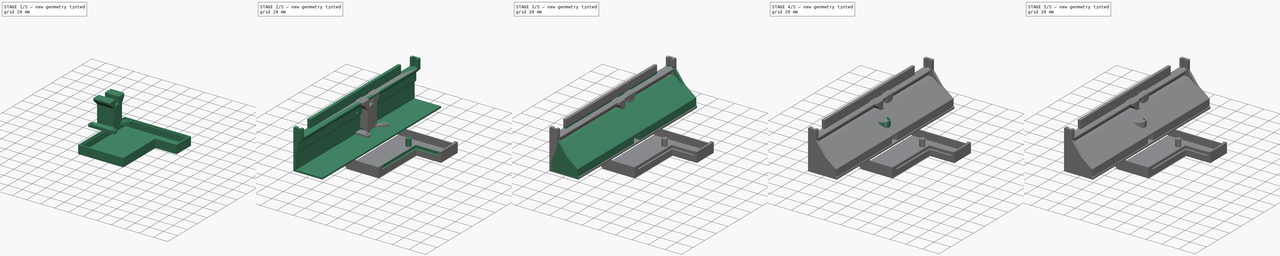
[diagram: build sequence overview — one tinted view per stage of 5, left to right]
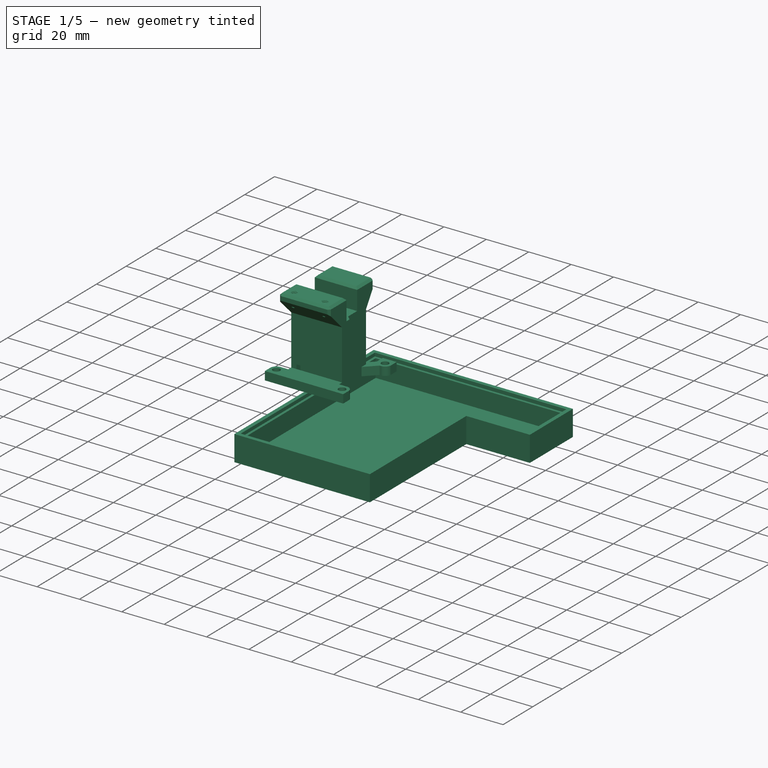
[diagram: stage 1 of 5 — iso view after this stage's code; geometry added in this stage tinted green]
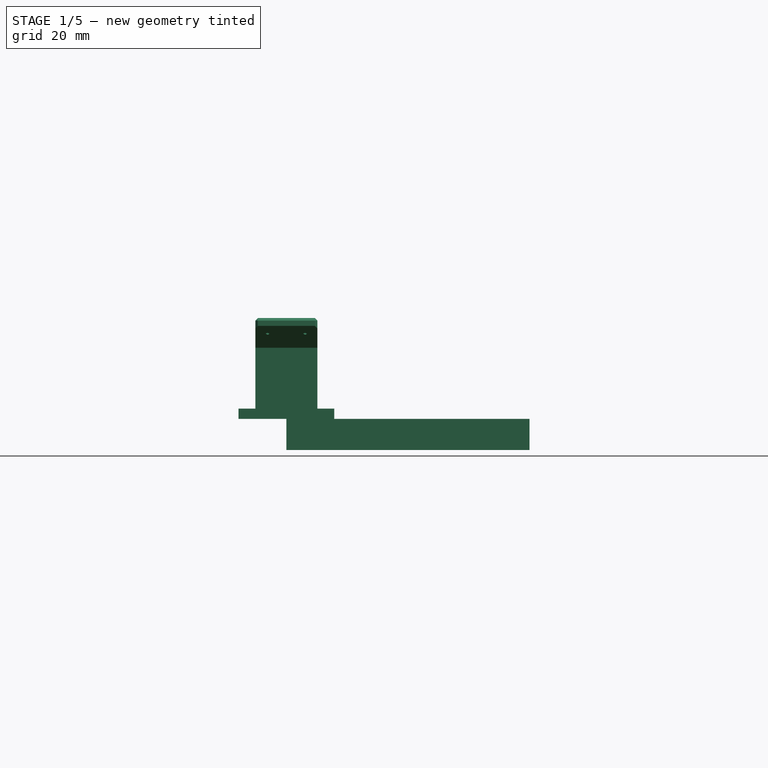
[diagram: stage 1 of 5 — front view after this stage's code; geometry added in this stage tinted green]
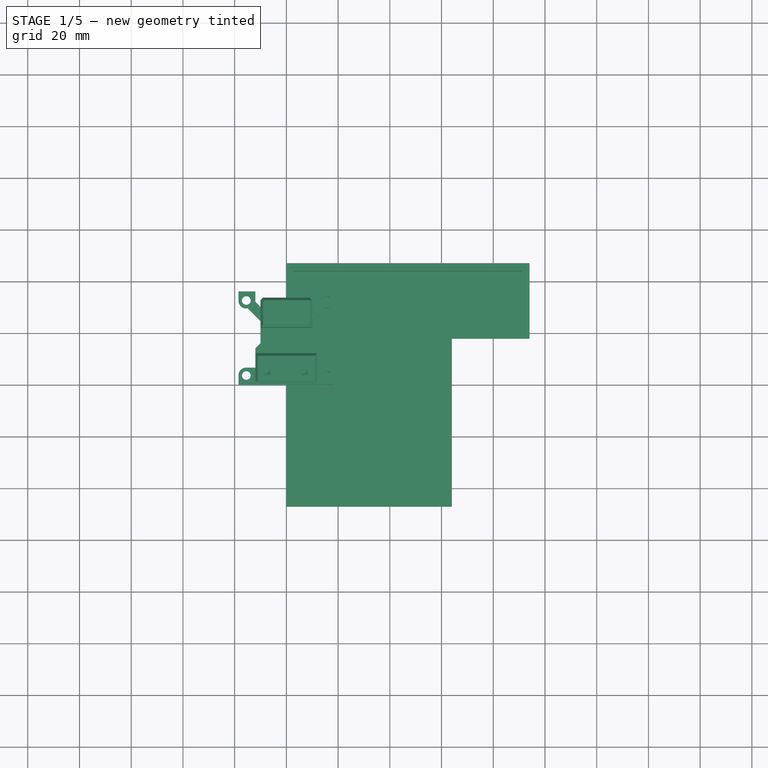
[diagram: stage 1 of 5 — top view after this stage's code; geometry added in this stage tinted green]
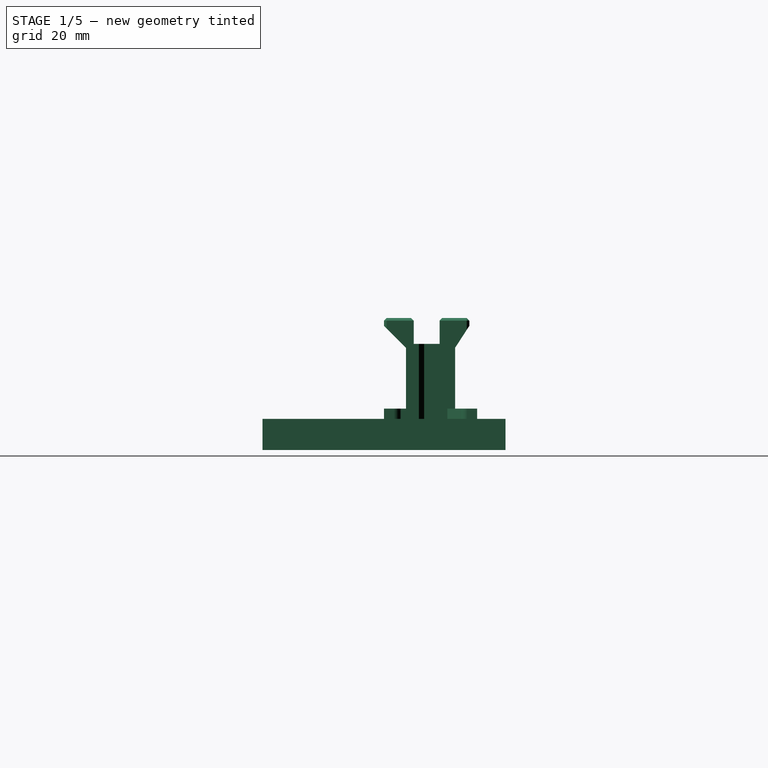
[diagram: stage 1 of 5 — right view after this stage's code; geometry added in this stage tinted green]
FCSTD DOCUMENT  (FreeCAD 1.0R39319 (Git))
Label: AuxPower1U
License: All rights reserved
LicenseURL: https://en.wikipedia.org/wiki/All_rights_reserved
objects: Sketcher::SketchObject×43, PartDesign::Pocket×22, PartDesign::Pad×17, PartDesign::Body×10, PartDesign::Chamfer×5, PartDesign::Hole×3, PartDesign::Revolution×1
note: 240 computed .brp shape members not serialized (recipe doc carries the construction recipe); baked Part::Feature solids carry a one-line shape summary decoded from their .brp

FEATURE [PartDesign::Body] Body001  label="PsuRailFront"
  AllowCompound = false
  Group = -> [Sketch003,Pad001,Sketch004,Pocket002,Sketch007,Pocket005,Sketch008,Pocket006,Sketch026,Pad010,Sketch027,Pad011]
  Origin = -> Origin001
  Placement = pos=(50,-150,0) rot=(0,0,1;0rad)
  Tip = -> Pad011
FEATURE [Sketcher::SketchObject] Sketch028  label="FanBaseSketch"
  ArcFitTolerance = 1e-06
  AttachmentSupport = -> [XY_Plane008]
  FullyConstrained = true
  MakeInternals = false
  MapMode = 5
  sketch-geometry (61):
    g0: LineSegment [constr] StartX=-30 StartY=0 StartZ=0 EndX=30 EndY=0 EndZ=0
    g1: LineSegment [constr] StartX=-48 StartY=36 StartZ=0 EndX=-48 EndY=0 EndZ=0
    g2: LineSegment [constr] StartX=-48 StartY=0 StartZ=0 EndX=-12 EndY=0 EndZ=0
    g3: LineSegment [constr] StartX=-12 StartY=0 StartZ=0 EndX=-12 EndY=36 EndZ=0
    g4: Circle [constr] CenterX=-44.5 CenterY=32.5 CenterZ=0 NormalX=0 NormalY=0 NormalZ=1 AngleXU=0 Radius=1.7
    g5: Circle CenterX=-15.5 CenterY=32.5 CenterZ=0 NormalX=0 NormalY=0 NormalZ=1 AngleXU=0 Radius=1.7
    g6: Circle CenterX=-15.5 CenterY=3.5 CenterZ=0 NormalX=0 NormalY=0 NormalZ=1 AngleXU=0 Radius=1.7
    g7: Circle [constr] CenterX=-44.5 CenterY=3.5 CenterZ=0 NormalX=0 NormalY=0 NormalZ=1 AngleXU=0 Radius=1.7
    g8: LineSegment [constr] StartX=-44.5 StartY=32.5 StartZ=0 EndX=-15.5 EndY=32.5 EndZ=0
    g9: LineSegment [constr] StartX=-15.5 StartY=32.5 StartZ=0 EndX=-15.5 EndY=3.5 EndZ=0
    g10: LineSegment [constr] StartX=-15.5 StartY=3.5 StartZ=0 EndX=-44.5 EndY=3.5 EndZ=0
    g11: LineSegment [constr] StartX=-44.5 StartY=3.5 StartZ=0 EndX=-44.5 EndY=32.5 EndZ=0
    g12: LineSegment [constr] StartX=-44.5 StartY=32.5 StartZ=0 EndX=-48 EndY=36 EndZ=0
    g13: LineSegment [constr] StartX=-15.5 StartY=32.5 StartZ=0 EndX=-12 EndY=36 EndZ=0
    g14: LineSegment [constr] StartX=-44.5 StartY=3.5 StartZ=0 EndX=-48 EndY=0 EndZ=0
    g15: LineSegment [constr] StartX=-12 StartY=0 StartZ=0 EndX=-15.5 EndY=3.5 EndZ=0
    g16: LineSegment [constr] StartX=12 StartY=0 StartZ=0 EndX=48 EndY=0 EndZ=0
    g17: LineSegment [constr] StartX=48 StartY=0 StartZ=0 EndX=48 EndY=36 EndZ=0
    g18: LineSegment [constr] StartX=48 StartY=36 StartZ=0 EndX=12 EndY=36 EndZ=0
    g19: LineSegment [constr] StartX=12 StartY=36 StartZ=0 EndX=12 EndY=0 EndZ=0
    g20: LineSegment [constr] StartX=15.5 StartY=32.5 StartZ=0 EndX=15.5 EndY=3.5 EndZ=0
    g21: LineSegment [constr] StartX=15.5 StartY=3.5 StartZ=0 EndX=44.5 EndY=3.5 EndZ=0
    g22: LineSegment [constr] StartX=44.5 StartY=3.5 StartZ=0 EndX=44.5 EndY=32.5 EndZ=0
    g23: LineSegment [constr] StartX=44.5 StartY=32.5 StartZ=0 EndX=15.5 EndY=32.5 EndZ=0
    g24: LineSegment [constr] StartX=44.5 StartY=32.5 StartZ=0 EndX=48 EndY=36 EndZ=0
    g25: LineSegment [constr] StartX=44.5 StartY=3.5 StartZ=0 EndX=48 EndY=0 EndZ=0
    g26: Circle CenterX=15.5 CenterY=32.5 CenterZ=0 NormalX=0 NormalY=0 NormalZ=1 AngleXU=0 Radius=1.7
    g27: Circle [constr] CenterX=44.5 CenterY=32.5 CenterZ=0 NormalX=0 NormalY=0 NormalZ=1 AngleXU=0 Radius=1.7
    g28: Circle [constr] CenterX=44.5 CenterY=3.5 CenterZ=0 NormalX=0 NormalY=0 NormalZ=1 AngleXU=0 Radius=1.7
    g29: Circle CenterX=15.5 CenterY=3.5 CenterZ=0 NormalX=0 NormalY=0 NormalZ=1 AngleXU=0 Radius=1.7
    g30: LineSegment StartX=-12 StartY=6.5 StartZ=0 EndX=-16 EndY=6.5 EndZ=0
    g31: LineSegment StartX=-18.5 StartY=0 StartZ=0 EndX=-18.5 EndY=4 EndZ=0
    g32: LineSegment StartX=12 StartY=6.5 StartZ=0 EndX=16 EndY=6.5 EndZ=0
    g33: LineSegment StartX=18.5 StartY=4 StartZ=0 EndX=18.5 EndY=0 EndZ=0
    g34: LineSegment StartX=-18.5 StartY=0 StartZ=0 EndX=18.5 EndY=0 EndZ=0
    g35: LineSegment StartX=18.5 StartY=36 StartZ=0 EndX=18.5 EndY=32 EndZ=0
    g36: ArcOfCircle CenterX=15.5 CenterY=3.5 CenterZ=0 NormalX=0 NormalY=0 NormalZ=1 AngleXU=0 Radius=3.04138 StartAngle=0.165149 EndAngle=1.40565
    g37: ArcOfCircle CenterX=15.5 CenterY=32.5 CenterZ=0 NormalX=0 NormalY=0 NormalZ=1 AngleXU=0 Radius=3.04138 StartAngle=4.87754 EndAngle=6.11804
    g38: ArcOfCircle CenterX=-15.5 CenterY=3.5 CenterZ=0 NormalX=0 NormalY=0 NormalZ=1 AngleXU=0 Radius=3.04138 StartAngle=1.73595 EndAngle=2.97644
    g39: LineSegment [constr] StartX=-12 StartY=29.5 StartZ=0 EndX=-10 EndY=29.5 EndZ=0
    g40: LineSegment StartX=-12 StartY=6.5 StartZ=0 EndX=-12 EndY=13.5 EndZ=0
    g41: LineSegment StartX=12 StartY=6.5 StartZ=0 EndX=12 EndY=13.5 EndZ=0
    g42: LineSegment StartX=-12 StartY=13.5 StartZ=0 EndX=-10 EndY=15.5 EndZ=0
    g43: LineSegment StartX=-10 StartY=24.5 StartZ=0 EndX=-10 EndY=15.5 EndZ=0
    g44: LineSegment StartX=12 StartY=13.5 StartZ=0 EndX=10 EndY=15.5 EndZ=0
    g45: LineSegment StartX=10 StartY=24.5 StartZ=0 EndX=10 EndY=15.5 EndZ=0
    g46: LineSegment StartX=18.5 StartY=36 StartZ=0 EndX=12 EndY=36 EndZ=0
    g47: LineSegment StartX=-15 StartY=29.5 StartZ=0 EndX=-10 EndY=24.5 EndZ=0
    g48: LineSegment StartX=-12 StartY=32 StartZ=0 EndX=-7.5 EndY=27.5 EndZ=0
    g49: LineSegment StartX=-7.5 StartY=27.5 StartZ=0 EndX=7.5 EndY=27.5 EndZ=0
    g50: LineSegment [constr] StartX=-10 StartY=29.5 StartZ=0 EndX=-10 EndY=27.5 EndZ=0
    g51: LineSegment StartX=-12 StartY=36 StartZ=0 EndX=-18.5 EndY=36 EndZ=0
    g52: LineSegment StartX=-18.5 StartY=36 StartZ=0 EndX=-18.5 EndY=32 EndZ=0
    g53: LineSegment StartX=-15 StartY=29.5 StartZ=0 EndX=-16 EndY=29.5 EndZ=0
    g54: ArcOfCircle CenterX=-15.5 CenterY=32.5 CenterZ=0 NormalX=0 NormalY=0 NormalZ=1 AngleXU=0 Radius=3.04138 StartAngle=3.30674 EndAngle=4.54724
    g55: LineSegment StartX=-12 StartY=36 StartZ=0 EndX=-12 EndY=32 EndZ=0
    g56: LineSegment StartX=12 StartY=36 StartZ=0 EndX=12 EndY=32 EndZ=0
    g57: LineSegment StartX=12 StartY=32 StartZ=0 EndX=7.5 EndY=27.5 EndZ=0
    g58: LineSegment [constr] StartX=-12 StartY=36 StartZ=0 EndX=-12 EndY=32 EndZ=0
    g59: LineSegment StartX=16 StartY=29.5 StartZ=0 EndX=15 EndY=29.5 EndZ=0
    g60: LineSegment StartX=15 StartY=29.5 StartZ=0 EndX=10 EndY=24.5 EndZ=0
  constraints (167):
    c: PointOnObject(g0,g-1)
    c: Symmetric(g0,g0,g-1)
    c: DistanceX(g0,g0) = 60
    c: Coincident(g1,g2)
    c: Coincident(g2,g3)
    c: Vertical(g1)
    c: Vertical(g3)
    c: Horizontal(g2)
    c: DistanceY(g1,g1) = 36
    c: Equal(g2,g1)
    c: Symmetric(g2,g1,g0)
    c: Coincident(g8,g4)
    c: Coincident(g8,g5)
    c: Coincident(g9,g5)
    c: Coincident(g9,g6)
    c: Vertical(g9)
    c: Coincident(g10,g6)
    c: Coincident(g10,g7)
    c: Horizontal(g10)
    c: Coincident(g11,g7)
    c: Coincident(g11,g4)
    c: Vertical(g11)
    c: Horizontal(g8)
    c: Equal(g9,g8)
    c: Coincident(g12,g4)
    c: Coincident(g12,g1)
    c: Coincident(g13,g5)
    c: Coincident(g13,g3)
    c: Coincident(g14,g7)
    c: Coincident(g14,g1)
    c: Coincident(g15,g2)
    c: Coincident(g15,g6)
    c: Equal(g15,g14)
    c: Equal(g14,g12)
    c: DistanceY(g11,g11) = 29
    c: Diameter(g6) = 3.4
    c: Equal(g7,g6)
    c: Equal(g6,g5)
    c: Equal(g5,g4)
    c: Coincident(g16,g17)
    c: Coincident(g17,g18)
    c: Coincident(g18,g19)
    c: Coincident(g19,g16)
    c: Horizontal(g16)
    c: Horizontal(g18)
    c: Vertical(g17)
    c: Vertical(g19)
    c: Equal(g17,g1)
    c: Symmetric(g16,g16,g0)
    c: Equal(g18,g17)
    c: Coincident(g20,g21)
    c: Coincident(g21,g22)
    c: Coincident(g22,g23)
    c: Coincident(g23,g20)
    c: Vertical(g20)
    c: Vertical(g22)
    c: Horizontal(g21)
    c: Horizontal(g23)
    c: Equal(g21,g20)
    c: Equal(g20,g9)
    c: Horizontal(g20,g6)
    c: Coincident(g24,g22)
    c: Coincident(g24,g17)
    c: Coincident(g25,g21)
    c: Coincident(g25,g16)
    c: Equal(g24,g13)
    c: Coincident(g26,g20)
    c: Coincident(g27,g22)
    c: Coincident(g28,g21)
    c: Coincident(g29,g20)
    c: Equal(g29,g28)
    c: Equal(g28,g27)
    c: Equal(g27,g26)
    c: Equal(g26,g6)
    c: PointOnObject(g30,g3)
    c: Horizontal(g30)
    c: DistanceX(g30,g30) = 4
    c: PointOnObject(g31,g0)
    c: Vertical(g31)
    c: Equal(g31,g30)
    c: DistanceX(g31,g2) = 6.5
    c: PointOnObject(g32,g19)
    c: Horizontal(g32)
    c: PointOnObject(g33,g0)
    c: Vertical(g33)
    c: Equal(g33,g31)
    c: Equal(g32,g30)
    c: Coincident(g34,g31)
    c: Coincident(g34,g33)
    c: PointOnObject(g35,g18)
    c: Vertical(g35)
    c: PointOnObject(g39,g3)
    c: Equal(g35,g30)
    c: Coincident(g36,g20)
    c: Coincident(g36,g32)
    c: Coincident(g36,g33)
    c: Horizontal(g32,g30)
    c: Coincident(g37,g20)
    c: Coincident(g37,g35)
    c: Coincident(g38,g6)
    c: Coincident(g38,g31)
    c: Coincident(g38,g30)
    c: Distance(g39) = 2
    c: Horizontal(g39)
    c: Distance(g40) = 7
    c: Coincident(g40,g30)
    c: PointOnObject(g40,g3)
    c: Coincident(g41,g32)
    c: Vertical(g41)
    c: Horizontal(g41,g40)
    c: Coincident(g42,g40)
    c: Vertical(g42,g39)
    c: Angle(g42,g3) = 0.785398
    c: Vertical(g43,g39)
    c: Coincident(g43,g42)
    c: Coincident(g44,g41)
    c: Angle(g19,g44) = 0.785398
    c: Vertical(g45,g44)
    c: Coincident(g45,g44)
    c: Coincident(g46,g35)
    c: Coincident(g46,g18)
    c: PointOnObject(g48,g3)
    c: Coincident(g47,g43)
    c: Angle(g9,g47) = 0.785398
    c: Horizontal(g48,g49)
    c: Coincident(g49,g48)
    c: Horizontal(g39,g47)
    c: Distance(g50) = 2
    c: Coincident(g50,g39)
    c: Vertical(g50)
    c: Horizontal(g48,g50)
    c: Coincident(g51,g3)
    c: Horizontal(g51)
    c: Horizontal(g3,g1)
    c: Vertical(g51,g31)
    c: Coincident(g52,g51)
    c: Vertical(g52)
    c: Equal(g52,g31)
    c: Coincident(g53,g47)
    c: Horizontal(g53)
    c: Vertical(g53,g30)
    c: Coincident(g54,g5)
    c: Coincident(g54,g52)
    c: Coincident(g54,g53)
    c: Coincident(g55,g3)
    c: Coincident(g55,g48)
    c: Angle(g48,g55) = 2.35619
    c: Coincident(g56,g18)
    c: Vertical(g56)
    c: Equal(g56,g55)
    c: Coincident(g57,g56)
    c: Coincident(g57,g49)
    c: Angle(g56,g57) = 2.35619
    c: Equal(g45,g43)
    c: Equal(g46,g51)
    c: Vertical(g58)
    c: Horizontal(g52,g58)
    c: Coincident(g58,g13)
    c: Horizontal(g48,g58)
    c: DistanceX(g53,g53) = 1
    c: Coincident(g59,g37)
    c: Horizontal(g59)
    c: Equal(g59,g53)
    c: Vertical(g37,g32)
    c: Coincident(g60,g59)
    c: Coincident(g60,g45)
    c: Horizontal(g45,g43)
FEATURE [PartDesign::Pad] Pad012  label="FanBasePad"
  Direction = (0,0,1)
  Length = 4
  Length2 = 10
  Profile = -> Sketch028
  ReferenceAxis = -> Sketch028 [N_Axis]
  Suppressed = false
  Type = 0
FEATURE [Sketcher::SketchObject] Sketch029  label="FanStemSketch"
  ArcFitTolerance = 1e-06
  AttachmentSupport = -> [YZ_Plane008]
  ExternalGeometry = -> [Pad012]
  FullyConstrained = true
  MakeInternals = false
  MapMode = 5
  Placement = pos=(0,0,0) rot=(0.57735,0.57735,0.57735;2.0944rad)
  sketch-geometry (10):
    g0: LineSegment StartX=0 StartY=36 StartZ=0 EndX=0 EndY=39 EndZ=0
    g1: LineSegment StartX=33 StartY=36 StartZ=0 EndX=33 EndY=39 EndZ=0
    g2: LineSegment StartX=0 StartY=39 StartZ=0 EndX=33 EndY=39 EndZ=0
    g3: LineSegment [constr] StartX=6.5 StartY=4 StartZ=0 EndX=8.5 EndY=4 EndZ=0
    g4: LineSegment [constr] StartX=29.5 StartY=4 StartZ=0 EndX=27.5 EndY=4 EndZ=0
    g5: LineSegment StartX=0 StartY=36 StartZ=0 EndX=8.5 EndY=27.5 EndZ=0
    g6: LineSegment StartX=8.5 StartY=27.5 StartZ=0 EndX=8.5 EndY=4 EndZ=0
    g7: LineSegment StartX=8.5 StartY=4 StartZ=0 EndX=27.5 EndY=4 EndZ=0
    g8: LineSegment StartX=27.5 StartY=4 StartZ=0 EndX=27.5 EndY=27.5 EndZ=0
    g9: LineSegment StartX=27.5 StartY=27.5 StartZ=0 EndX=33 EndY=36 EndZ=0
  constraints (28):
    c: DistanceY(g-3,g0) = 32
    c: Distance(g0) = 3
    c: Coincident(g2,g0)
    c: Coincident(g2,g1)
    c: Distance(g3) = 2
    c: Coincident(g3,g-3)
    c: PointOnObject(g3,g-3)
    c: Coincident(g4,g-3)
    c: PointOnObject(g4,g-3)
    c: Equal(g4,g3)
    c: Coincident(g5,g0)
    c: Vertical(g3,g5)
    c: Coincident(g6,g5)
    c: Coincident(g6,g3)
    c: Coincident(g7,g3)
    c: Coincident(g7,g4)
    c: Coincident(g8,g4)
    c: Vertical(g8)
    c: Equal(g8,g6)
    c: Horizontal(g2)
    c: Coincident(g9,g8)
    c: Coincident(g9,g1)
    c: Vertical(g0)
    c: DistanceX(g2,g2) = 33
    c: Equal(g1,g0)
    c: Angle(g5,g0) = 2.35619
    c: Vertical(g0,g-5)
    c: Vertical(g1)
FEATURE [PartDesign::Pad] Pad013  label="FanStemPad"
  BaseFeature = -> Pad012
  Direction = (1,0,0)
  Length = 24
  Length2 = 10
  Midplane = true
  Profile = -> Sketch029
  ReferenceAxis = -> Sketch029 [N_Axis]
  Suppressed = false
  Type = 0
FEATURE [Sketcher::SketchObject] Sketch032  label="FanPcbSketch"
  ArcFitTolerance = 1e-06
  FullyConstrained = true
  MakeInternals = false
  MapMode = 5
  Placement = pos=(0,0,0) rot=(1,0,0;3.14159rad)
  sketch-geometry (13):
    g0: LineSegment [constr] StartX=-9.5 StartY=0 StartZ=0 EndX=9.5 EndY=-1.747e-13 EndZ=0
    g1: LineSegment [constr] StartX=-9.5 StartY=-12.5 StartZ=0 EndX=9.5 EndY=-12.5 EndZ=0
    g2: LineSegment StartX=-9.5 StartY=-12.5 StartZ=0 EndX=-10.5 EndY=-12.5 EndZ=0
    g3: LineSegment StartX=9.5 StartY=-12.5 StartZ=0 EndX=10.5 EndY=-12.5 EndZ=0
    g4: LineSegment StartX=10.5 StartY=-12.5 StartZ=0 EndX=10.5 EndY=-10.5 EndZ=0
    g5: LineSegment StartX=-10.5 StartY=-10.5 StartZ=0 EndX=-10.5 EndY=-12.5 EndZ=0
    g6: LineSegment StartX=-10.5 StartY=-10.5 StartZ=0 EndX=-9.5 EndY=-10.5 EndZ=0
    g7: LineSegment StartX=10.5 StartY=-10.5 StartZ=0 EndX=9.5 EndY=-10.5 EndZ=0
    g8: LineSegment StartX=9.5 StartY=-10.5 StartZ=0 EndX=9.5 EndY=-8.5 EndZ=0
    g9: LineSegment StartX=9.5 StartY=-8.5 StartZ=0 EndX=-9.5 EndY=-8.5 EndZ=0
    g10: LineSegment StartX=-9.5 StartY=-10.5 StartZ=0 EndX=-9.5 EndY=-8.5 EndZ=0
    g11: LineSegment StartX=9.5 StartY=-12.5 StartZ=0 EndX=-9.5 EndY=-12.5 EndZ=0
    g12: LineSegment [constr] StartX=-9.5 StartY=0 StartZ=0 EndX=-9.5 EndY=-8.5 EndZ=0
  constraints (37):
    c: PointOnObject(g0,g-4)
    c: DistanceX(g0,g0) = 19
    c: Symmetric(g0,g0,g-1)
    c: Horizontal(g1)
    c: Vertical(g1,g0)
    c: Coincident(g2,g1)
    c: Coincident(g3,g1)
    c: DistanceX(g3,g3) = 1
    c: Coincident(g4,g3)
    c: Vertical(g4)
    c: DistanceY(g4,g4) = 2
    c: Coincident(g5,g2)
    c: Horizontal(g2)
    c: Horizontal(g3)
    c: Vertical(g1,g0)
    c: Vertical(g5)
    c: Equal(g2,g3)
    c: Horizontal(g6,g5)
    c: Coincident(g6,g5)
    c: Coincident(g7,g4)
    c: Horizontal(g7)
    c: Equal(g7,g3)
    c: Equal(g4,g5)
    c: Equal(g2,g6)
    c: Coincident(g8,g7)
    c: Vertical(g8)
    c: Coincident(g9,g8)
    c: Horizontal(g9)
    c: Coincident(g10,g6)
    c: Coincident(g10,g9)
    c: Vertical(g10)
    c: DistanceY(g8,g8) = 2
    c: Coincident(g11,g1)
    c: Coincident(g11,g1)
    c: Coincident(g12,g0)
    c: Coincident(g12,g9)
    c: DistanceY(g12,g12) = 8.5
FEATURE [PartDesign::Pocket] Pocket016  label="FanPcbPocket"
  BaseFeature = -> Pad013
  Direction = (0,1e-16,1)
  Length = 6
  Length2 = 5
  Profile = -> Sketch032
  ReferenceAxis = -> Sketch032 [N_Axis]
  Suppressed = false
  Type = 0
FEATURE [Sketcher::SketchObject] Sketch036  label="ControllerBoxSketch"
  ArcFitTolerance = 1e-06
  AttachmentSupport = -> [XY_Plane010]
  FullyConstrained = true
  MakeInternals = false
  MapMode = 5
  sketch-geometry (9):
    g0: LineSegment StartX=0 StartY=47 StartZ=0 EndX=0 EndY=-47 EndZ=0
    g1: LineSegment [constr] StartX=0 StartY=47 StartZ=0 EndX=94 EndY=47 EndZ=0
    g2: LineSegment [constr] StartX=0 StartY=-47 StartZ=0 EndX=64 EndY=-47 EndZ=0
    g3: LineSegment StartX=94 StartY=47 StartZ=0 EndX=94 EndY=18 EndZ=0
    g4: LineSegment StartX=64 StartY=-47 StartZ=0 EndX=64 EndY=18 EndZ=0
    g5: LineSegment StartX=64 StartY=18 StartZ=0 EndX=94 EndY=18 EndZ=0
    g6: LineSegment [constr] StartX=20 StartY=-47 StartZ=0 EndX=0 EndY=-47 EndZ=0
    g7: LineSegment StartX=0 StartY=-47 StartZ=0 EndX=64 EndY=-47 EndZ=0
    g8: LineSegment StartX=0 StartY=47 StartZ=0 EndX=94 EndY=47 EndZ=0
  constraints (26):
    c: Distance(g0) = 94
    c: Distance(g1) = 94
    c: Coincident(g1,g0)
    c: Distance(g2) = 64
    c: Coincident(g0,g2)
    c: Horizontal(g2,g0)
    c: Distance(g3) = 29
    c: Coincident(g3,g1)
    c: Vertical(g3,g1)
    c: Coincident(g4,g2)
    c: Coincident(g5,g4)
    c: Coincident(g5,g3)
    c: Horizontal(g4,g3)
    c: Vertical(g4,g2)
    c: Vertical(g0)
    c: Distance(g6) = 20
    c: Horizontal(g6)
    c: Horizontal(g1)
    c: Coincident(g0,g6)
    c: Coincident(g7,g2)
    c: Coincident(g8,g1)
    c: Horizontal(g7)
    c: Vertical(g7,g0)
    c: Horizontal(g8)
    c: Vertical(g8,g0)
    c: Symmetric(g7,g8,g-1)
FEATURE [Sketcher::SketchObject] Sketch039  label="ControllerEdgeSketch"
  ArcFitTolerance = 1e-06
  AttachmentSupport = -> [XY_Plane010]
  FullyConstrained = true
  MakeInternals = false
  MapMode = 5
  sketch-geometry (7):
    g0: LineSegment StartX=3 StartY=44 StartZ=0 EndX=3 EndY=-44 EndZ=0
    g1: LineSegment StartX=3 StartY=44 StartZ=0 EndX=91 EndY=44 EndZ=0
    g2: LineSegment StartX=3 StartY=-44 StartZ=0 EndX=61 EndY=-44 EndZ=0
    g3: LineSegment StartX=91 StartY=44 StartZ=0 EndX=91 EndY=21 EndZ=0
    g4: LineSegment StartX=61 StartY=-44 StartZ=0 EndX=61 EndY=21 EndZ=0
    g5: LineSegment StartX=91 StartY=21 StartZ=0 EndX=61 EndY=21 EndZ=0
    g6: LineSegment [constr] StartX=0 StartY=0 StartZ=0 EndX=3 EndY=0 EndZ=0
  constraints (20):
    c: Distance(g0) = 88
    c: Distance(g1) = 88
    c: Coincident(g1,g0)
    c: Distance(g2) = 58
    c: Coincident(g2,g0)
    c: Horizontal(g2)
    c: Distance(g3) = 23
    c: Coincident(g3,g1)
    c: Vertical(g3)
    c: Coincident(g4,g2)
    c: Coincident(g5,g3)
    c: Coincident(g5,g4)
    c: Horizontal(g3,g4)
    c: Vertical(g2,g4)
    c: Vertical(g0)
    c: Horizontal(g1)
    c: Coincident(g6,g-1)
    c: PointOnObject(g6,g-1)
    c: DistanceX(g6,g6) = 3
    c: Symmetric(g0,g0,g6)
FEATURE [PartDesign::Pad] Pad015  label="ControllerBoxPad"
  Direction = (0,0,1)
  Length = 12
  Length2 = 10
  Profile = -> Sketch036
  ReferenceAxis = -> Sketch036 [N_Axis]
  Refine = true
  Reversed = true
  Suppressed = false
  Type = 0
FEATURE [PartDesign::Pocket] Pocket019  label="ControllerEdgePocket"
  BaseFeature = -> Pad015
  Direction = (0,0,-1)
  Length = 10
  Length2 = 5
  Profile = -> Sketch039
  ReferenceAxis = -> Sketch039 [N_Axis]
  Refine = true
  Suppressed = false
  Type = 0
FEATURE [Sketcher::SketchObject] Sketch038  label="ControllerPcbSketch"
  ArcFitTolerance = 1e-06
  AttachmentSupport = -> [XY_Plane010]
  ExternalGeometry = -> [Pocket019]
  FullyConstrained = true
  MakeInternals = false
  MapMode = 5
  sketch-geometry (8):
    g0: LineSegment StartX=1.8 StartY=45.2 StartZ=0 EndX=1.8 EndY=-45.2 EndZ=0
    g1: LineSegment StartX=1.8 StartY=45.2 StartZ=0 EndX=92.2 EndY=45.2 EndZ=0
    g2: LineSegment StartX=92.2 StartY=45.2 StartZ=0 EndX=92.2 EndY=20 EndZ=0
    g3: LineSegment StartX=1.8 StartY=-45.2 StartZ=0 EndX=62.2 EndY=-45.2 EndZ=0
    g4: LineSegment StartX=62.2 StartY=-45.2 StartZ=0 EndX=62.2 EndY=20 EndZ=0
    g5: LineSegment StartX=92.2 StartY=20 StartZ=0 EndX=62.2 EndY=20 EndZ=0
    g6: LineSegment [constr] StartX=0 StartY=47 StartZ=0 EndX=1.8 EndY=45.2 EndZ=0
    g7: LineSegment [constr] StartX=1.8 StartY=-45.2 StartZ=0 EndX=2e-16 EndY=-47 EndZ=0
  constraints (22):
    c: Distance(g0) = 90.4
    c: Distance(g1) = 90.4
    c: Coincident(g0,g1)
    c: Distance(g2) = 25.2
    c: Coincident(g2,g1)
    c: Vertical(g2,g1)
    c: Distance(g3) = 60.4
    c: Coincident(g3,g0)
    c: Horizontal(g3,g0)
    c: Coincident(g4,g3)
    c: Coincident(g5,g2)
    c: Vertical(g5,g3)
    c: Coincident(g5,g4)
    c: Horizontal(g4,g2)
    c: Horizontal(g1)
    c: Vertical(g0)
    c: Coincident(g0,g6)
    c: Coincident(g7,g0)
    c: Angle(g6) = -0.785398
    c: Equal(g6,g7)
    c: Coincident(g6,g-3)
    c: Coincident(g7,g-3)
FEATURE [PartDesign::Pocket] Pocket020  label="ControllerPcbPocket"
  BaseFeature = -> Pocket019
  Direction = (0,0,-1)
  Length = 1.6
  Length2 = 5
  Profile = -> Sketch038
  ReferenceAxis = -> Sketch038 [N_Axis]
  Refine = true
  Suppressed = false
  Type = 0
FEATURE [PartDesign::Body] Body010  label="Controller"
  AllowCompound = false
  Group = -> [Sketch038,Sketch036,Sketch039,Pad015,Pocket019,Pocket020,Sketch043,Pad017,Sketch044,Hole002,Sketch045,Pocket021,Sketch046,Pocket022,Sketch047,Pad018,Sketch048,Hole003]
  Origin = -> Origin010
  Placement = pos=(-250,-100,0) rot=(0,0,1;0rad)
  Tip = -> Hole003
FEATURE [Sketcher::SketchObject] Sketch049  label="FanCutoutSketch"
  ArcFitTolerance = 1e-06
  AttachmentSupport = -> [Pocket016]
  ExternalGeometry = -> [Pocket016]
  FullyConstrained = true
  MakeInternals = false
  MapMode = 5
  Placement = pos=(0,0,4) rot=(0,0,1;0rad)
  sketch-geometry (8):
    g0: LineSegment StartX=12 StartY=13.5 StartZ=0 EndX=12 EndY=33 EndZ=0
    g1: LineSegment StartX=10 StartY=33 StartZ=0 EndX=10 EndY=15.5 EndZ=0
    g2: LineSegment StartX=10 StartY=15.5 StartZ=0 EndX=12 EndY=13.5 EndZ=0
    g3: LineSegment StartX=-10 StartY=33 StartZ=0 EndX=-10 EndY=15.5 EndZ=0
    g4: LineSegment StartX=-10 StartY=15.5 StartZ=0 EndX=-12 EndY=13.5 EndZ=0
    g5: LineSegment StartX=-12 StartY=13.5 StartZ=0 EndX=-12 EndY=33 EndZ=0
    g6: LineSegment StartX=-12 StartY=33 StartZ=0 EndX=-10 EndY=33 EndZ=0
    g7: LineSegment StartX=10 StartY=33 StartZ=0 EndX=12 EndY=33 EndZ=0
  constraints (19):
    c: Coincident(g0,g-3)
    c: Coincident(g1,g-3)
    c: Coincident(g2,g1)
    c: Coincident(g2,g0)
    c: Horizontal(g-4,g4)
    c: Coincident(g3,g-4)
    c: Coincident(g4,g3)
    c: Coincident(g5,g4)
    c: Coincident(g5,g-5)
    c: Vertical(g5)
    c: Coincident(g6,g5)
    c: PointOnObject(g6,g-5)
    c: Coincident(g6,g3)
    c: Coincident(g0,g-5)
    c: Horizontal(g1,g0)
    c: Vertical(g1)
    c: Vertical(g3,g3)
    c: Coincident(g7,g1)
    c: Coincident(g7,g0)
FEATURE [PartDesign::Pocket] Pocket023  label="FanCutoutPocket"
  BaseFeature = -> Pocket016
  Direction = (0,0,-1)
  Length = 100
  Length2 = 5
  Profile = -> Sketch049
  ReferenceAxis = -> Sketch049 [N_Axis]
  Reversed = true
  Suppressed = false
  Type = 0
FEATURE [Sketcher::SketchObject] Sketch050  label="FanClearanceSketch"
  ArcFitTolerance = 1e-06
  AttachmentSupport = -> [Pocket023]
  ExternalGeometry = -> [Pocket023]
  FullyConstrained = true
  MakeInternals = false
  MapMode = 5
  Placement = pos=(0,0,39) rot=(0,0,1;0rad)
  sketch-geometry (8):
    g0: LineSegment StartX=-12 StartY=21.5 StartZ=0 EndX=-12 EndY=11.5 EndZ=0
    g1: LineSegment StartX=-12 StartY=11.5 StartZ=0 EndX=12 EndY=11.5 EndZ=0
    g2: LineSegment StartX=12 StartY=11.5 StartZ=0 EndX=12 EndY=21.5 EndZ=0
    g3: LineSegment StartX=12 StartY=21.5 StartZ=0 EndX=-12 EndY=21.5 EndZ=0
    g4: LineSegment [constr] StartX=-10 StartY=33 StartZ=0 EndX=-10 EndY=21.5 EndZ=0
    g5: LineSegment [constr] StartX=-12 StartY=0 StartZ=0 EndX=-12 EndY=11.5 EndZ=0
    g6: LineSegment [constr] StartX=12 StartY=0 StartZ=0 EndX=12 EndY=11.5 EndZ=0
    g7: LineSegment [constr] StartX=10 StartY=33 StartZ=0 EndX=10 EndY=21.5 EndZ=0
  constraints (22):
    c: Coincident(g0,g1)
    c: Coincident(g1,g2)
    c: Coincident(g2,g3)
    c: Coincident(g3,g0)
    c: Vertical(g0)
    c: Vertical(g2)
    c: Horizontal(g1)
    c: Horizontal(g3)
    c: DistanceY(g2,g2) = 10
    c: Vertical(g-3,g1)
    c: Vertical(g0,g-3)
    c: Coincident(g4,g-4)
    c: Vertical(g4)
    c: Coincident(g5,g-3)
    c: Coincident(g5,g0)
    c: Coincident(g6,g-3)
    c: Coincident(g6,g1)
    c: Coincident(g7,g-4)
    c: Vertical(g7)
    c: Horizontal(g7,g2)
    c: Horizontal(g4,g0)
    c: Equal(g5,g4)
FEATURE [PartDesign::Pocket] Pocket024  label="FanClearancePocket"
  BaseFeature = -> Pocket023
  Direction = (0,0,-1)
  Length = 10
  Length2 = 5
  Profile = -> Sketch050
  ReferenceAxis = -> Sketch050 [N_Axis]
  Suppressed = false
  Type = 0
FEATURE [Sketcher::SketchObject] Sketch051  label="FanScrewSketch"
  ArcFitTolerance = 1e-06
  AttachmentSupport = -> [Pad013]
  ExternalGeometry = -> [Pad013]
  FullyConstrained = true
  MakeInternals = false
  MapMode = 5
  Placement = pos=(0,0,39) rot=(0,0,1;0rad)
  sketch-geometry (6):
    g0: LineSegment [constr] StartX=-12 StartY=0 StartZ=0 EndX=-12 EndY=4 EndZ=0
    g1: LineSegment [constr] StartX=-12 StartY=4 StartZ=0 EndX=-7.25 EndY=4 EndZ=0
    g2: LineSegment [constr] StartX=12 StartY=0 StartZ=0 EndX=12 EndY=4 EndZ=0
    g3: LineSegment [constr] StartX=12 StartY=4 StartZ=0 EndX=7.25 EndY=4 EndZ=0
    g4: Circle CenterX=-7.25 CenterY=4 CenterZ=0 NormalX=0 NormalY=0 NormalZ=1 AngleXU=0 Radius=1.5
    g5: Circle CenterX=7.25 CenterY=4 CenterZ=0 NormalX=0 NormalY=0 NormalZ=1 AngleXU=0 Radius=1.5
  constraints (16):
    c: Coincident(g0,g-3)
    c: Vertical(g0)
    c: Coincident(g1,g0)
    c: Horizontal(g1)
    c: Coincident(g2,g-3)
    c: Vertical(g2)
    c: Coincident(g3,g2)
    c: Horizontal(g3)
    c: Equal(g1,g3)
    c: DistanceX(g1,g1) = 4.75
    c: Diameter(g4) = 3
    c: Coincident(g4,g1)
    c: Coincident(g5,g3)
    c: Equal(g5,g4)
    c: DistanceY(g0,g0) = 4
    c: Equal(g2,g0)
FEATURE [PartDesign::Hole] Hole  label="FanScrewHole"
  BaseFeature = -> Pocket024
  CustomThreadClearance = 0
  Depth = 6
  DepthType = 0
  Diameter = 2.52
  DrillForDepth = false
  DrillPoint = 1
  DrillPointAngle = 118
  HoleCutCountersinkAngle = 90
  HoleCutCustomValues = false
  HoleCutDepth = 0
  HoleCutDiameter = 6.1
  HoleCutType = 0
  ModelThread = true
  Profile = -> Sketch051
  Suppressed = false
  Tapered = false
  TaperedAngle = 90
  ThreadClass = 0
  ThreadDepth = 6
  ThreadDepthType = 0
  ThreadDirection = 0
  ThreadFit = 0
  ThreadSize = 9
  ThreadType = 1
  Threaded = true
  UseCustomThreadClearance = false
FEATURE [PartDesign::Chamfer] Chamfer
  Angle = 45
  Base = -> Hole [Edge244,Edge192,Edge223,Edge181,Edge65,Edge64,Edge154,Edge152,Edge155,Edge153,Edge193,Edge182]
  BaseFeature = -> Hole
  ChamferType = 0
  FlipDirection = false
  Size = 1
  Size2 = 1
  SupportTransform = false
  Suppressed = false
  UseAllEdges = false
FEATURE [PartDesign::Body] Body008  label="Fan"
  AllowCompound = false
  Group = -> [Sketch028,Pad012,Sketch029,Sketch051,Pad013,Sketch032,Pocket016,Sketch049,Pocket023,Sketch050,Pocket024,Hole,Chamfer]
  Origin = -> Origin008
  Placement = pos=(-150,50,0) rot=(0,0,1;0rad)
  Tip = -> Chamfer
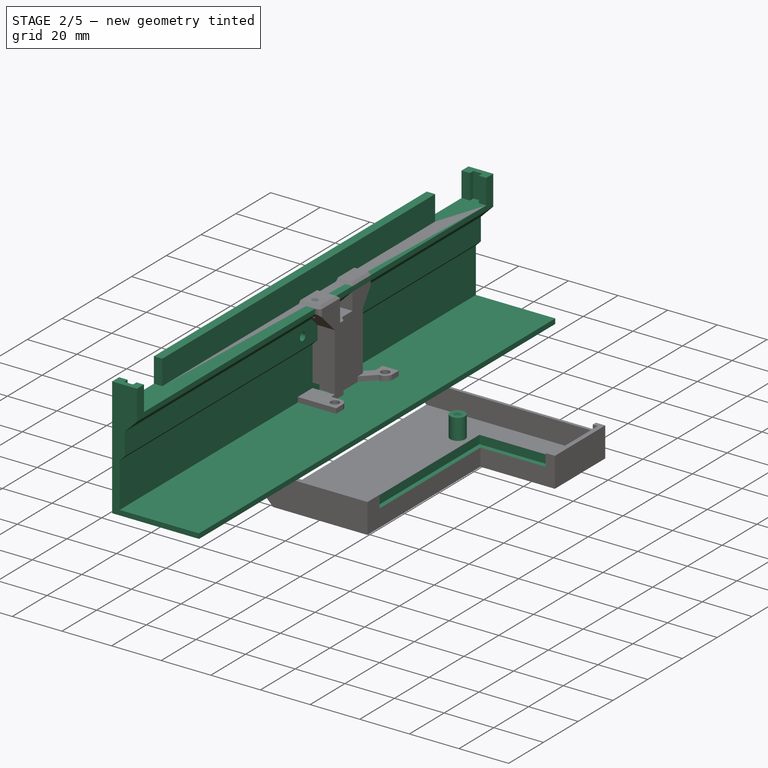
[diagram: stage 2 of 5 — iso view after this stage's code; geometry added in this stage tinted green]
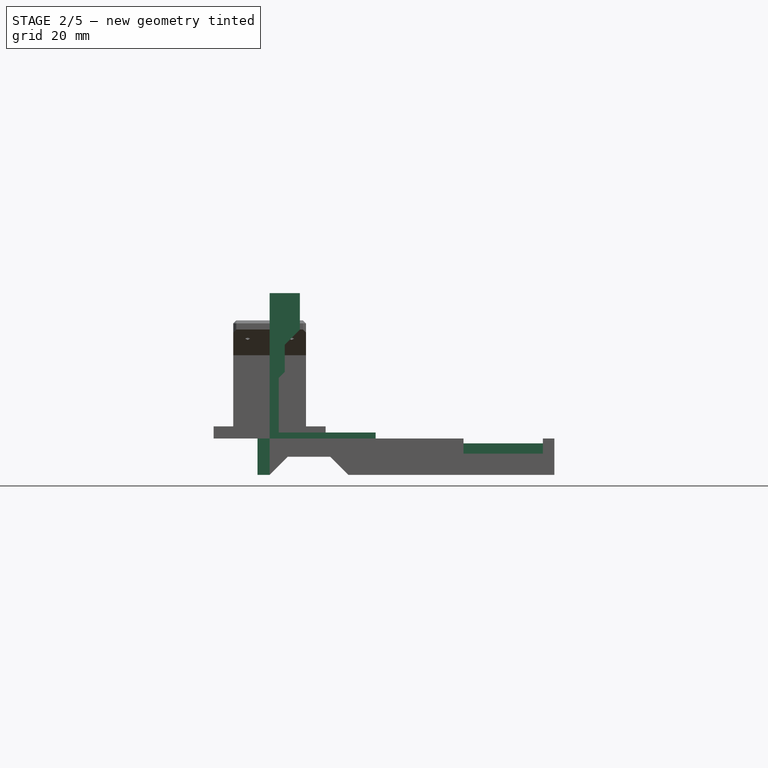
[diagram: stage 2 of 5 — front view after this stage's code; geometry added in this stage tinted green]
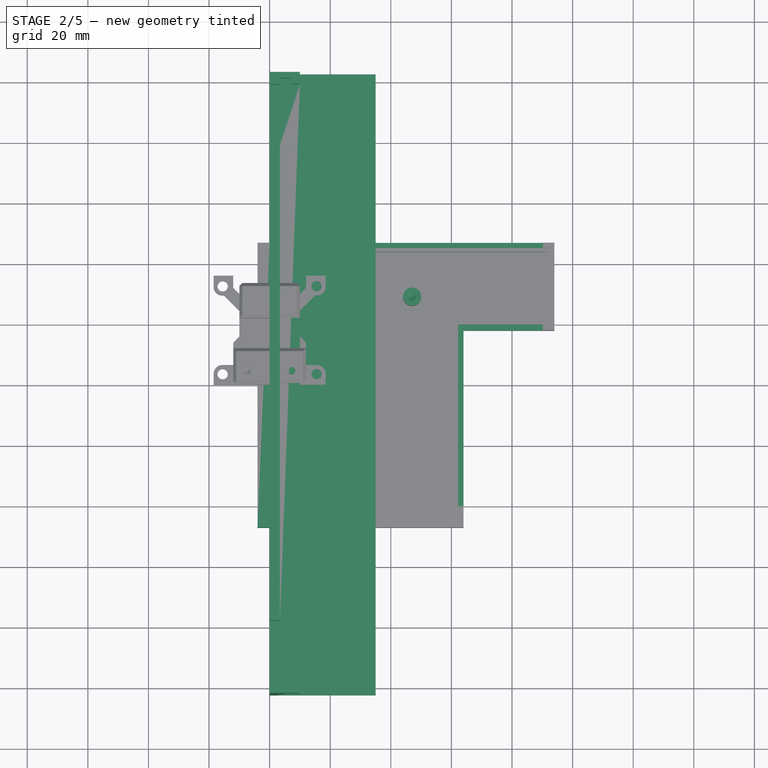
[diagram: stage 2 of 5 — top view after this stage's code; geometry added in this stage tinted green]
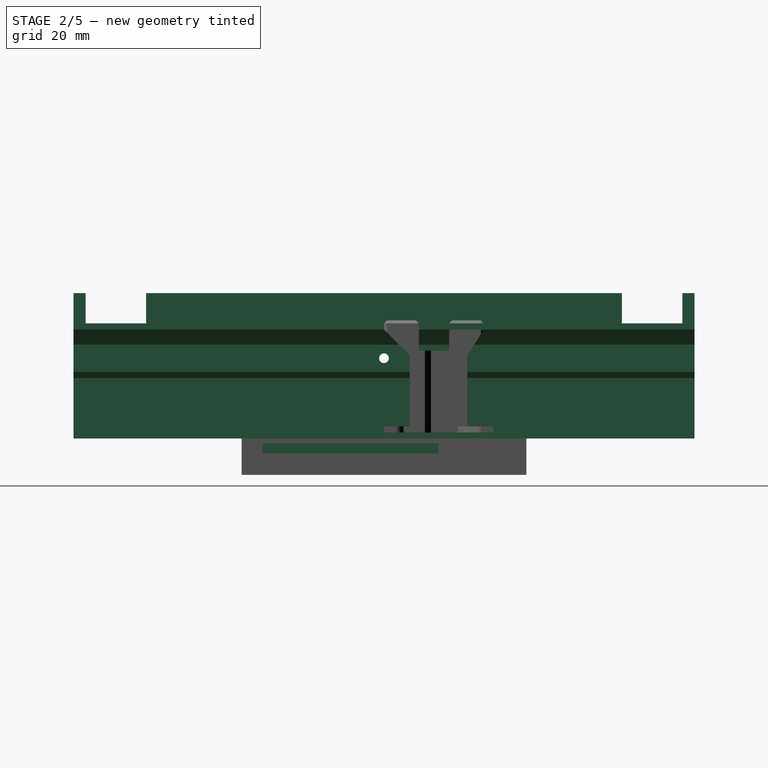
[diagram: stage 2 of 5 — right view after this stage's code; geometry added in this stage tinted green]
FEATURE [Sketcher::SketchObject] Sketch003  label="ProfileFrontSketch"
  ArcFitTolerance = 1e-06
  AttachmentSupport = -> [XZ_Plane001]
  FullyConstrained = true
  MakeInternals = false
  MapMode = 5
  Placement = pos=(0,0,0) rot=(1,0,0;1.5708rad)
  sketch-geometry (11):
    g0: LineSegment StartX=0 StartY=0 StartZ=0 EndX=35 EndY=0 EndZ=0
    g1: LineSegment StartX=35 StartY=0 StartZ=0 EndX=35 EndY=2 EndZ=0
    g2: LineSegment StartX=35 StartY=2 StartZ=0 EndX=3 EndY=2 EndZ=0
    g3: LineSegment [constr] StartX=3 StartY=2 StartZ=0 EndX=0 EndY=2 EndZ=0
    g4: LineSegment StartX=3 StartY=2 StartZ=0 EndX=3 EndY=20 EndZ=0
    g5: LineSegment StartX=0 StartY=0 StartZ=0 EndX=0 EndY=48 EndZ=0
    g6: LineSegment StartX=3 StartY=20 StartZ=0 EndX=5 EndY=22 EndZ=0
    g7: LineSegment StartX=5 StartY=22 StartZ=0 EndX=5 EndY=31 EndZ=0
    g8: LineSegment StartX=5 StartY=31 StartZ=0 EndX=10 EndY=36 EndZ=0
    g9: LineSegment StartX=10 StartY=36 StartZ=0 EndX=10 EndY=48 EndZ=0
    g10: LineSegment StartX=10 StartY=48 StartZ=0 EndX=0 EndY=48 EndZ=0
  constraints (33):
    c: Coincident(g0,g-1)
    c: PointOnObject(g0,g-1)
    c: DistanceX(g0,g0) = 35
    c: Distance(g1) = 2
    c: Vertical(g1)
    c: PointOnObject(g1,g0)
    c: Vertical(g1,g0)
    c: Coincident(g2,g1)
    c: Horizontal(g2)
    c: Coincident(g3,g2)
    c: PointOnObject(g3,g-2)
    c: Horizontal(g3)
    c: DistanceX(g3,g3) = 3
    c: Coincident(g4,g2)
    c: Vertical(g4)
    c: Coincident(g5,g0)
    c: PointOnObject(g5,g-2)
    c: Coincident(g6,g4)
    c: Distance(g7) = 9
    c: Vertical(g7)
    c: Coincident(g7,g6)
    c: Angle(g4,g6) = 2.35619
    c: DistanceY(g6,g6) = 2
    c: Coincident(g8,g7)
    c: Angle(g7,g8) = 2.35619
    c: DistanceY(g8,g8) = 5
    c: Coincident(g9,g8)
    c: Vertical(g9)
    c: DistanceY(g9,g9) = 12
    c: Coincident(g10,g9)
    c: Coincident(g10,g5)
    c: Horizontal(g10)
    c: DistanceY(g5,g5) = 48
FEATURE [PartDesign::Pad] Pad001  label="ProfileFrontPad"
  Direction = (0,-1,2e-16)
  Length = 205
  Length2 = 10
  Midplane = true
  Placement = pos=(0,0,0) rot=(1,0,0;1.5708rad)
  Profile = -> Sketch003
  ReferenceAxis = -> Sketch003 [N_Axis]
  Refine = true
  Suppressed = false
  Type = 0
FEATURE [Sketcher::SketchObject] Sketch004  label="RailFrontSketch"
  ArcFitTolerance = 1e-06
  AttachmentSupport = -> [Pad001]
  ExternalGeometry = -> [Pad001]
  FullyConstrained = true
  MakeInternals = false
  MapMode = 5
  Placement = pos=(0,2.11e-14,48) rot=(0,0,1;3.14159rad)
  sketch-geometry (18):
    g0: LineSegment StartX=-10 StartY=98.5 StartZ=0 EndX=-7 EndY=98.5 EndZ=0
    g1: LineSegment StartX=-7 StartY=98.5 StartZ=0 EndX=-7 EndY=100.5 EndZ=0
    g2: LineSegment StartX=-7 StartY=100.5 StartZ=0 EndX=-3.4 EndY=100.5 EndZ=0
    g3: LineSegment [constr] StartX=0 StartY=102.5 StartZ=0 EndX=-10 EndY=98.5 EndZ=0
    g4: LineSegment [constr] StartX=0 StartY=-102.5 StartZ=0 EndX=-10 EndY=-98.5 EndZ=0
    g5: LineSegment StartX=-10 StartY=98.5 StartZ=0 EndX=-10 EndY=-98.5 EndZ=0
    g6: LineSegment StartX=-10 StartY=-98.5 StartZ=0 EndX=-7 EndY=-98.5 EndZ=0
    g7: LineSegment StartX=-7 StartY=-98.5 StartZ=0 EndX=-7 EndY=-100.5 EndZ=0
    g8: LineSegment StartX=-7 StartY=-100.5 StartZ=0 EndX=-3.4 EndY=-100.5 EndZ=0
    g9: LineSegment StartX=-3.4 StartY=100.5 StartZ=0 EndX=-3.4 EndY=98.5 EndZ=0
    g10: LineSegment StartX=-3.4 StartY=98.5 StartZ=0 EndX=0 EndY=98.5 EndZ=0
    g11: LineSegment StartX=0 StartY=98.5 StartZ=0 EndX=0 EndY=78.5 EndZ=0
    g12: LineSegment StartX=0 StartY=78.5 StartZ=0 EndX=-3.4 EndY=78.5 EndZ=0
    g13: LineSegment StartX=-3.4 StartY=-100.5 StartZ=0 EndX=-3.4 EndY=-98.5 EndZ=0
    g14: LineSegment StartX=-3.4 StartY=-98.5 StartZ=0 EndX=0 EndY=-98.5 EndZ=0
    g15: LineSegment StartX=0 StartY=-98.5 StartZ=0 EndX=0 EndY=-78.5 EndZ=0
    g16: LineSegment StartX=0 StartY=-78.5 StartZ=0 EndX=-3.4 EndY=-78.5 EndZ=0
    g17: LineSegment StartX=-3.4 StartY=78.5 StartZ=0 EndX=-3.4 EndY=-78.5 EndZ=0
  constraints (52):
    c: PointOnObject(g0,g-3)
    c: Horizontal(g0)
    c: Coincident(g1,g0)
    c: Vertical(g1)
    c: Coincident(g2,g1)
    c: Horizontal(g2)
    c: Coincident(g3,g-5)
    c: Coincident(g3,g0)
    c: Coincident(g4,g-4)
    c: PointOnObject(g4,g-3)
    c: Equal(g4,g3)
    c: Coincident(g5,g0)
    c: Coincident(g5,g4)
    c: Coincident(g6,g4)
    c: Horizontal(g6)
    c: Coincident(g7,g6)
    c: Vertical(g7)
    c: Coincident(g8,g7)
    c: Horizontal(g8)
    c: Equal(g6,g0)
    c: DistanceX(g0,g0) = 3
    c: DistanceY(g8,g2) = 201
    c: DistanceY(g1,g1) = 2
    c: DistanceX(g2,g2) = 3.6
    c: Equal(g1,g7)
    c: Equal(g8,g2)
    c: Coincident(g9,g2)
    c: Vertical(g9)
    c: Coincident(g10,g9)
    c: PointOnObject(g10,g-2)
    c: Horizontal(g10)
    c: Coincident(g11,g10)
    c: PointOnObject(g11,g-2)
    c: Coincident(g12,g11)
    c: Horizontal(g12)
    c: Equal(g12,g10)
    c: Equal(g9,g1)
    c: Coincident(g13,g8)
    c: Vertical(g13)
    c: Coincident(g14,g13)
    c: PointOnObject(g14,g-2)
    c: Horizontal(g14)
    c: Coincident(g15,g14)
    c: PointOnObject(g15,g-2)
    c: Coincident(g16,g15)
    c: Horizontal(g16)
    c: Equal(g16,g14)
    c: Equal(g13,g7)
    c: Equal(g15,g11)
    c: DistanceY(g15,g15) = 20
    c: Coincident(g17,g12)
    c: Coincident(g17,g16)
FEATURE [PartDesign::Pocket] Pocket002  label="RailFrontPocket"
  BaseFeature = -> Pad001
  Direction = (0,0,-1)
  Length = 10
  Length2 = 5
  Placement = pos=(0,0,0) rot=(1,0,0;1.5708rad)
  Profile = -> Sketch004
  ReferenceAxis = -> Sketch004 [N_Axis]
  Refine = true
  Suppressed = false
  Type = 0
FEATURE [Sketcher::SketchObject] Sketch007  label="StandoffHoleSketch"
  ArcFitTolerance = 1e-06
  AttachmentSupport = -> [Pocket002]
  ExternalGeometry = -> [Pocket002]
  FullyConstrained = true
  MakeInternals = false
  MapMode = 5
  Placement = pos=(5,0,0) rot=(0.707107,0,0.707107;3.14159rad)
  sketch-geometry (3):
    g0: LineSegment [constr] StartX=26.5 StartY=0 StartZ=0 EndX=22 EndY=-1.35e-14 EndZ=0
    g1: LineSegment [constr] StartX=26.5 StartY=0 StartZ=0 EndX=31 EndY=-1.43e-14 EndZ=0
    g2: Circle CenterX=26.5 CenterY=0 CenterZ=0 NormalX=0 NormalY=0 NormalZ=1 AngleXU=0 Radius=1.6
  constraints (7):
    c: PointOnObject(g0,g-1)
    c: Symmetric(g-4,g-4,g0)
    c: Coincident(g1,g0)
    c: Symmetric(g-3,g-3,g1)
    c: Equal(g0,g1)
    c: Diameter(g2) = 3.2
    c: Coincident(g2,g0)
FEATURE [PartDesign::Pocket] Pocket005  label="StandoffHolePocket"
  BaseFeature = -> Pocket002
  Direction = (-1,0,2e-16)
  Length = 5
  Length2 = 5
  Placement = pos=(0,0,0) rot=(1,0,0;1.5708rad)
  Profile = -> Sketch007
  ReferenceAxis = -> Sketch007 [N_Axis]
  Refine = true
  Suppressed = false
  Type = 0
FEATURE [Sketcher::SketchObject] Sketch043  label="ControllerStemSketch"
  ArcFitTolerance = 1e-06
  AttachmentSupport = -> [XZ_Plane010]
  FullyConstrained = true
  MakeInternals = false
  MapMode = 5
  Placement = pos=(0,0,0) rot=(1,0,0;1.5708rad)
  sketch-geometry (4):
    g0: LineSegment StartX=0 StartY=-12 StartZ=0 EndX=-4 EndY=-12 EndZ=0
    g1: LineSegment StartX=0 StartY=-12 StartZ=0 EndX=0 EndY=0 EndZ=0
    g2: LineSegment StartX=0 StartY=0 StartZ=0 EndX=-4 EndY=0 EndZ=0
    g3: LineSegment StartX=-4 StartY=-12 StartZ=0 EndX=-4 EndY=0 EndZ=0
  constraints (13):
    c: Distance(g0) = 4
    c: Horizontal(g0)
    c: Vertical(g2,g-1)
    c: Horizontal(g2)
    c: Coincident(g3,g0)
    c: Coincident(g3,g2)
    c: Vertical(g3)
    c: DistanceY(g3,g3) = 12
    c: Horizontal(g2,g-1)
    c: Vertical(g1)
    c: Coincident(g1,g2)
    c: Vertical(g0,g1)
    c: Horizontal(g1,g0)
FEATURE [PartDesign::Pad] Pad017  label="ControllerStemPad"
  BaseFeature = -> Pocket020
  Direction = (0,-1,2e-16)
  Length = 94
  Length2 = 10
  Midplane = true
  Profile = -> Sketch043
  ReferenceAxis = -> Sketch043 [N_Axis]
  Suppressed = false
  Type = 0
FEATURE [Sketcher::SketchObject] Sketch044  label="ControllerSideScrewSketch"
  ArcFitTolerance = 1e-06
  AttachmentSupport = -> [Pad017]
  ExternalGeometry = -> [Pad017]
  FullyConstrained = true
  MakeInternals = false
  MapMode = 5
  Placement = pos=(-4,0,0) rot=(0.57735,-0.57735,-0.57735;2.0944rad)
  sketch-geometry (10):
    g0: LineSegment [constr] StartX=0 StartY=-12 StartZ=0 EndX=0 EndY=-7.25 EndZ=0
    g1: LineSegment [constr] StartX=0 StartY=-7.25 StartZ=0 EndX=-20 EndY=-7.25 EndZ=0
    g2: LineSegment [constr] StartX=-20 StartY=-7.25 StartZ=0 EndX=-40 EndY=-7.25 EndZ=0
    g3: LineSegment [constr] StartX=0 StartY=-7.25 StartZ=0 EndX=20 EndY=-7.25 EndZ=0
    g4: LineSegment [constr] StartX=20 StartY=-7.25 StartZ=0 EndX=40 EndY=-7.25 EndZ=0
    g5: Circle CenterX=-40 CenterY=-7.25 CenterZ=0 NormalX=0 NormalY=0 NormalZ=1 AngleXU=0 Radius=1.5
    g6: Circle CenterX=-20 CenterY=-7.25 CenterZ=0 NormalX=0 NormalY=0 NormalZ=1 AngleXU=0 Radius=1.5
    g7: Circle CenterX=0 CenterY=-7.25 CenterZ=0 NormalX=0 NormalY=0 NormalZ=1 AngleXU=0 Radius=1.5
    g8: Circle CenterX=20 CenterY=-7.25 CenterZ=0 NormalX=0 NormalY=0 NormalZ=1 AngleXU=0 Radius=1.5
    g9: Circle CenterX=40 CenterY=-7.25 CenterZ=0 NormalX=0 NormalY=0 NormalZ=1 AngleXU=0 Radius=1.5
  constraints (26):
    c: Distance(g0) = 4.75
    c: Vertical(g0)
    c: PointOnObject(g0,g-2)
    c: Horizontal(g0,g-3)
    c: Distance(g1) = 20
    c: Coincident(g1,g0)
    c: Horizontal(g1)
    c: Coincident(g2,g1)
    c: Horizontal(g2)
    c: Equal(g2,g1)
    c: Coincident(g3,g0)
    c: Horizontal(g3)
    c: Coincident(g4,g3)
    c: Horizontal(g4)
    c: Equal(g4,g3)
    c: Equal(g3,g1)
    c: Diameter(g5) = 3
    c: Coincident(g5,g2)
    c: Coincident(g6,g1)
    c: Coincident(g7,g0)
    c: Coincident(g8,g3)
    c: Coincident(g9,g4)
    c: Equal(g9,g8)
    c: Equal(g8,g7)
    c: Equal(g7,g6)
    c: Equal(g6,g5)
FEATURE [PartDesign::Hole] Hole002  label="ControllerSideScrewHole"
  BaseFeature = -> Pad017
  CustomThreadClearance = 0
  Depth = 7
  DepthType = 0
  Diameter = 2.52
  DrillForDepth = false
  DrillPoint = 1
  DrillPointAngle = 118
  HoleCutCountersinkAngle = 90
  HoleCutCustomValues = false
  HoleCutDepth = 0
  HoleCutDiameter = 6.1
  HoleCutType = 0
  ModelThread = true
  Profile = -> Sketch044
  Suppressed = false
  Tapered = false
  TaperedAngle = 90
  ThreadClass = 0
  ThreadDepth = 7
  ThreadDepthType = 0
  ThreadDirection = 0
  ThreadFit = 0
  ThreadSize = 9
  ThreadType = 1
  Threaded = true
  UseCustomThreadClearance = false
FEATURE [Sketcher::SketchObject] Sketch045  label="ControllerCutoutSketch"
  ArcFitTolerance = 1e-06
  AttachmentSupport = -> [XZ_Plane010]
  FullyConstrained = true
  MakeInternals = false
  MapMode = 5
  Placement = pos=(0,0,0) rot=(1,0,0;1.5708rad)
  sketch-geometry (5):
    g0: LineSegment [constr] StartX=0 StartY=0 StartZ=0 EndX=0 EndY=-6 EndZ=0
    g1: LineSegment StartX=20 StartY=-6 StartZ=0 EndX=26 EndY=-12 EndZ=0
    g2: LineSegment StartX=0 StartY=-12 StartZ=0 EndX=26 EndY=-12 EndZ=0
    g3: LineSegment StartX=0 StartY=-12 StartZ=0 EndX=6 EndY=-6 EndZ=0
    g4: LineSegment StartX=20 StartY=-6 StartZ=0 EndX=6 EndY=-6 EndZ=0
  constraints (15):
    c: Distance(g0) = 6
    c: Coincident(g0,g-1)
    c: Vertical(g0)
    c: PointOnObject(g2,g-2)
    c: DistanceY(g2,g0) = 6
    c: Horizontal(g1,g2)
    c: Coincident(g2,g1)
    c: Angle(g1,g2) = 0.785398
    c: Coincident(g3,g2)
    c: Angle(g2,g3) = 0.785398
    c: Coincident(g4,g1)
    c: Coincident(g4,g3)
    c: Horizontal(g3,g0)
    c: Horizontal(g1,g3)
    c: DistanceX(g0,g1) = 20
FEATURE [PartDesign::Pocket] Pocket021  label="ControllerCutoutPocket"
  BaseFeature = -> Hole002
  Direction = (0,1,-2e-16)
  Length = 5
  Length2 = 5
  Midplane = true
  Profile = -> Sketch045
  ReferenceAxis = -> Sketch045 [N_Axis]
  Suppressed = false
  Type = 1
FEATURE [Sketcher::SketchObject] Sketch046  label="ControllerClearanceSketch"
  ArcFitTolerance = 1e-06
  AttachmentSupport = -> [Pocket021]
  ExternalGeometry = -> [Pocket021]
  FullyConstrained = true
  MakeInternals = false
  MapMode = 5
  sketch-geometry (10):
    g0: LineSegment StartX=62.2 StartY=20 StartZ=0 EndX=62.2 EndY=-40 EndZ=0
    g1: LineSegment StartX=62.2 StartY=-40 StartZ=0 EndX=90.2 EndY=-40 EndZ=0
    g2: LineSegment StartX=90.2 StartY=-40 StartZ=0 EndX=90.2 EndY=20 EndZ=0
    g3: LineSegment StartX=90.2 StartY=20 StartZ=0 EndX=62.2 EndY=20 EndZ=0
    g4: LineSegment [constr] StartX=92.2 StartY=45.2 StartZ=0 EndX=90.2 EndY=45.2 EndZ=0
    g5: LineSegment [constr] StartX=1.8 StartY=45.2 StartZ=0 EndX=3.8 EndY=45.2 EndZ=0
    g6: LineSegment StartX=3.8 StartY=45.2 StartZ=0 EndX=90.2 EndY=45.2 EndZ=0
    g7: LineSegment StartX=90.2 StartY=45.2 StartZ=0 EndX=90.2 EndY=47.2 EndZ=0
    g8: LineSegment StartX=90.2 StartY=47.2 StartZ=0 EndX=3.8 EndY=47.2 EndZ=0
    g9: LineSegment StartX=3.8 StartY=47.2 StartZ=0 EndX=3.8 EndY=45.2 EndZ=0
  constraints (28):
    c: Coincident(g0,g1)
    c: Coincident(g1,g2)
    c: Coincident(g2,g3)
    c: Coincident(g3,g0)
    c: Vertical(g0)
    c: Vertical(g2)
    c: Horizontal(g1)
    c: Horizontal(g3)
    c: Distance(g0,g2) = 28
    c: Distance(g1,g3) = 60
    c: Coincident(g0,g-4)
    c: Coincident(g4,g-5)
    c: PointOnObject(g4,g-5)
    c: Coincident(g5,g-5)
    c: Horizontal(g5)
    c: DistanceX(g5,g5) = 2
    c: Equal(g4,g5)
    c: Coincident(g6,g7)
    c: Coincident(g7,g8)
    c: Coincident(g8,g9)
    c: Coincident(g9,g6)
    c: Horizontal(g6)
    c: Horizontal(g8)
    c: Vertical(g7)
    c: Vertical(g9)
    c: Coincident(g6,g5)
    c: Vertical(g6,g4)
    c: DistanceY(g9,g9) = 2
FEATURE [PartDesign::Pocket] Pocket022  label="ControllerClearancePocket"
  BaseFeature = -> Pocket021
  Direction = (0,0,-1)
  Length = 5
  Length2 = 5
  Profile = -> Sketch046
  ReferenceAxis = -> Sketch046 [N_Axis]
  Refine = true
  Suppressed = false
  Type = 0
FEATURE [Sketcher::SketchObject] Sketch047  label="ControllerPcbScrewBossSketch"
  ArcFitTolerance = 1e-06
  AttachmentSupport = -> [Pocket022]
  ExternalGeometry = -> [Pocket022]
  FullyConstrained = true
  MakeInternals = false
  MapMode = 5
  Placement = pos=(0,0,-10) rot=(0,0,1;0rad)
  sketch-geometry (4):
    g0: LineSegment [constr] StartX=3.8 StartY=45.2 StartZ=0 EndX=47 EndY=45.2 EndZ=0
    g1: LineSegment [constr] StartX=90.2 StartY=45.2 StartZ=0 EndX=47 EndY=45.2 EndZ=0
    g2: LineSegment [constr] StartX=47 StartY=45.2 StartZ=0 EndX=47 EndY=29.2 EndZ=0
    g3: Circle CenterX=47 CenterY=29.2 CenterZ=0 NormalX=0 NormalY=0 NormalZ=1 AngleXU=0 Radius=3
  constraints (10):
    c: Coincident(g0,g-3)
    c: Horizontal(g0)
    c: Coincident(g1,g-3)
    c: Coincident(g1,g0)
    c: Equal(g1,g0)
    c: Distance(g2) = 16
    c: Coincident(g2,g0)
    c: Vertical(g2)
    c: Diameter(g3) = 6
    c: Coincident(g3,g2)
FEATURE [PartDesign::Pad] Pad018  label="ControllerPcbScrewBossPad"
  BaseFeature = -> Pocket022
  Direction = (0,0,1)
  Length = 8.4
  Length2 = 10
  Profile = -> Sketch047
  ReferenceAxis = -> Sketch047 [N_Axis]
  Refine = true
  Suppressed = false
  Type = 0
FEATURE [Sketcher::SketchObject] Sketch048  label="ControllerPcbScrewSketch"
  ArcFitTolerance = 1e-06
  AttachmentSupport = -> [Pad018]
  ExternalGeometry = -> [Pad018]
  FullyConstrained = true
  MakeInternals = false
  MapMode = 5
  Placement = pos=(0,0,-1.6) rot=(0,0,1;0rad)
  sketch-geometry (1):
    g0: Circle CenterX=47 CenterY=29.2 CenterZ=0 NormalX=0 NormalY=0 NormalZ=1 AngleXU=0 Radius=1.5
  constraints (2):
    c: Diameter(g0) = 3
    c: Coincident(g0,g-3)
FEATURE [PartDesign::Hole] Hole003  label="ControllerPcbScrewHole"
  BaseFeature = -> Pad018
  CustomThreadClearance = 0
  Depth = 7
  DepthType = 0
  Diameter = 2.669
  DrillForDepth = false
  DrillPoint = 1
  DrillPointAngle = 118
  HoleCutCountersinkAngle = 90
  HoleCutCustomValues = false
  HoleCutDepth = 0
  HoleCutDiameter = 6.1
  HoleCutType = 0
  ModelThread = true
  Profile = -> Sketch048
  Suppressed = false
  Tapered = false
  TaperedAngle = 90
  ThreadClass = 0
  ThreadDepth = 7
  ThreadDepthType = 0
  ThreadDirection = 0
  ThreadFit = 0
  ThreadSize = 9
  ThreadType = 2
  Threaded = true
  UseCustomThreadClearance = false
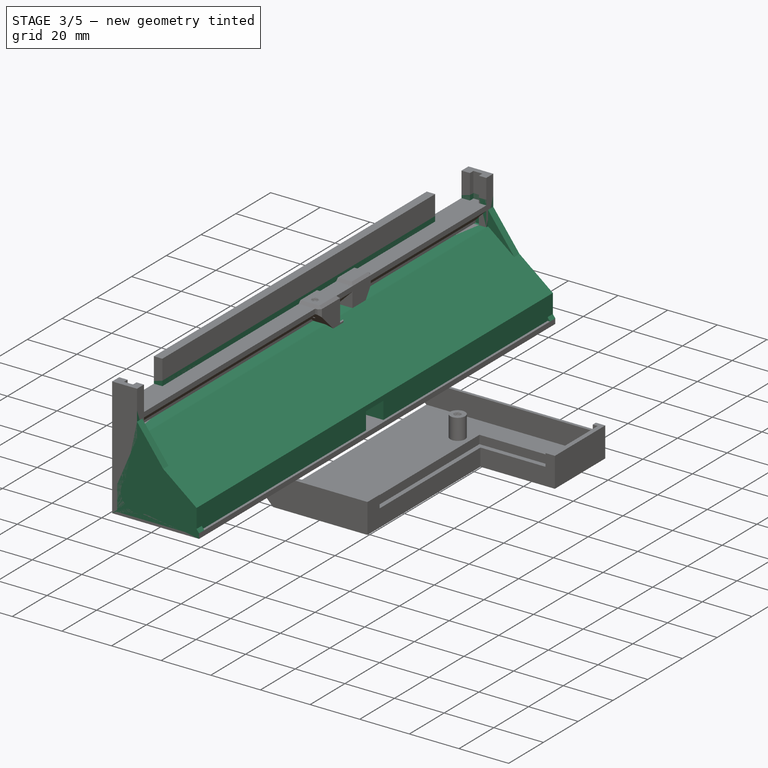
[diagram: stage 3 of 5 — iso view after this stage's code; geometry added in this stage tinted green]
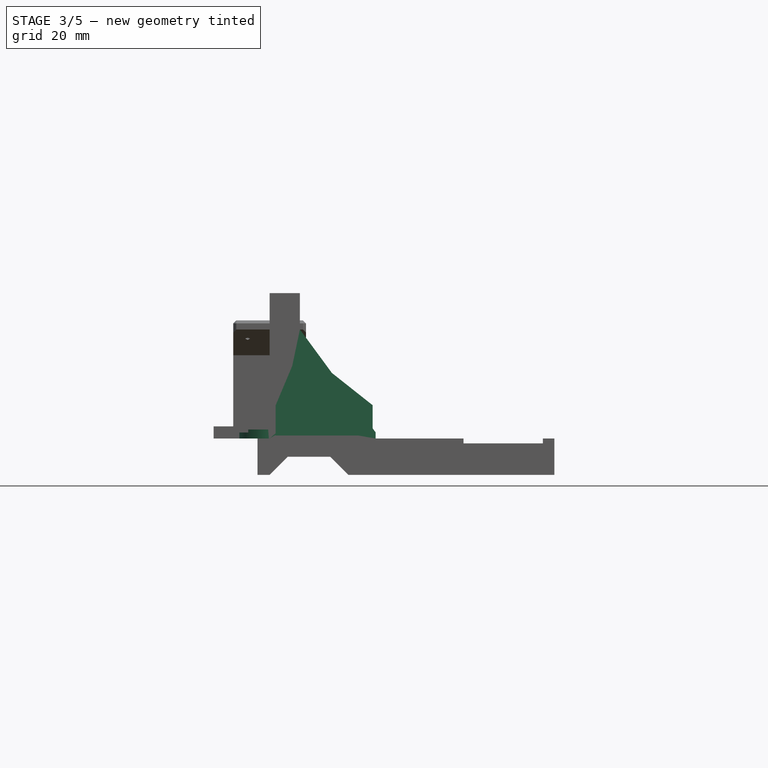
[diagram: stage 3 of 5 — front view after this stage's code; geometry added in this stage tinted green]
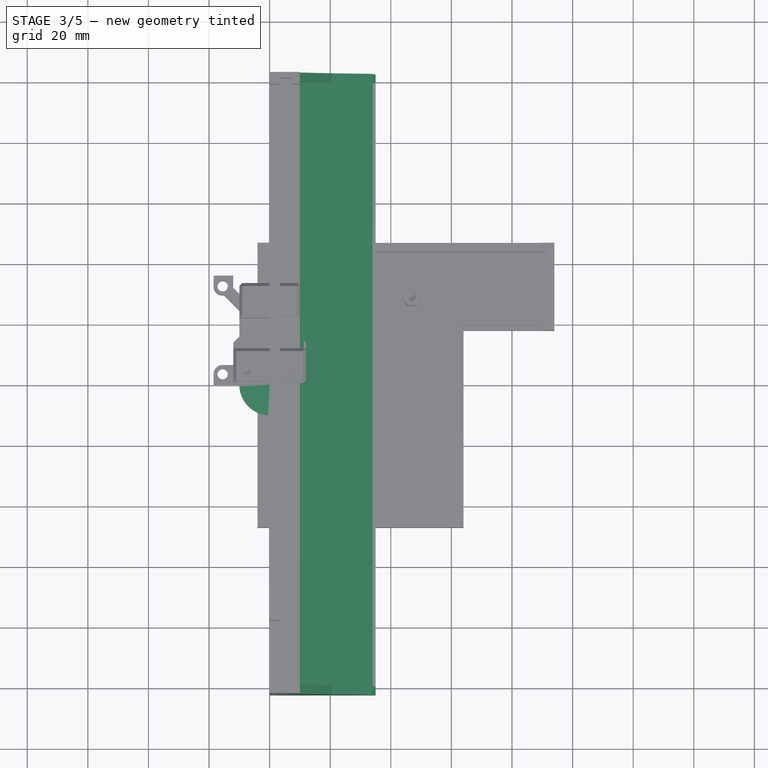
[diagram: stage 3 of 5 — top view after this stage's code; geometry added in this stage tinted green]
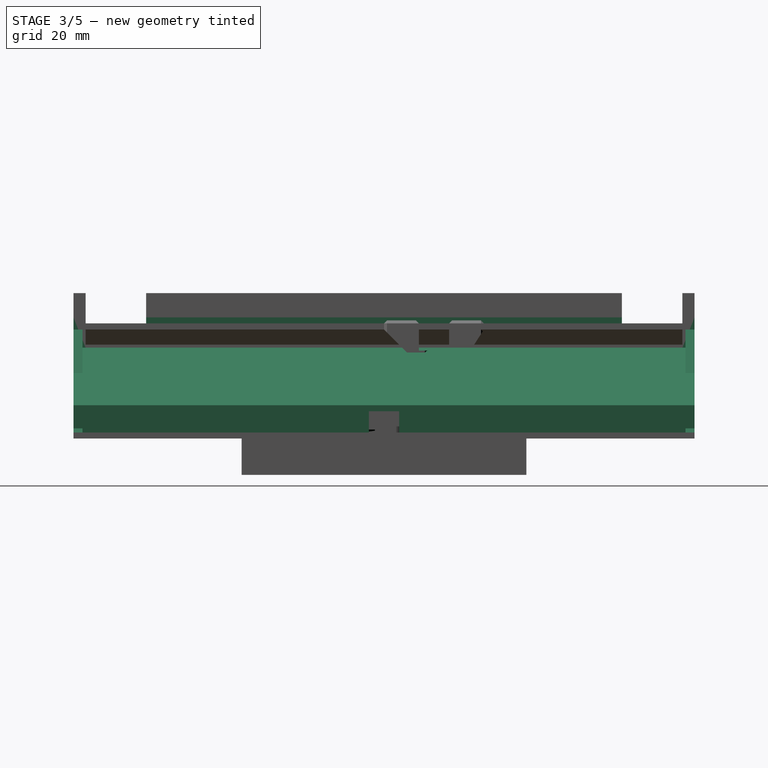
[diagram: stage 3 of 5 — right view after this stage's code; geometry added in this stage tinted green]
FEATURE [Sketcher::SketchObject] Sketch  label="ProfileBackSketch"
  ArcFitTolerance = 1e-06
  AttachmentSupport = -> [XZ_Plane]
  FullyConstrained = true
  MakeInternals = false
  MapMode = 5
  Placement = pos=(0,0,0) rot=(1,0,0;1.5708rad)
  sketch-geometry (10):
    g0: LineSegment [constr] StartX=0 StartY=0 StartZ=0 EndX=1 EndY=0 EndZ=0
    g1: LineSegment StartX=1 StartY=0 StartZ=0 EndX=34 EndY=0 EndZ=0
    g2: LineSegment StartX=1 StartY=0 StartZ=0 EndX=1 EndY=11 EndZ=0
    g3: LineSegment StartX=34 StartY=0 StartZ=0 EndX=34 EndY=11 EndZ=0
    g4: LineSegment StartX=1 StartY=11 StartZ=0 EndX=0 EndY=30 EndZ=0
    g5: LineSegment [constr] StartX=0 StartY=0 StartZ=0 EndX=0 EndY=30 EndZ=0
    g6: LineSegment StartX=10 StartY=30 StartZ=0 EndX=34 EndY=11 EndZ=0
    g7: LineSegment StartX=0 StartY=30 StartZ=0 EndX=0 EndY=40 EndZ=0
    g8: LineSegment StartX=0 StartY=40 StartZ=0 EndX=10 EndY=40 EndZ=0
    g9: LineSegment StartX=10 StartY=40 StartZ=0 EndX=10 EndY=30 EndZ=0
  constraints (29):
    c: Coincident(g0,g-1)
    c: PointOnObject(g0,g-1)
    c: DistanceX(g0,g0) = 1
    c: Coincident(g1,g0)
    c: PointOnObject(g1,g-1)
    c: DistanceX(g1,g1) = 33
    c: Coincident(g2,g0)
    c: Vertical(g2)
    c: DistanceY(g2,g2) = 11
    c: Coincident(g3,g1)
    c: Vertical(g3)
    c: Equal(g3,g2)
    c: Coincident(g4,g2)
    c: PointOnObject(g4,g-2)
    c: Coincident(g5,g0)
    c: Vertical(g5)
    c: Horizontal(g4,g5)
    c: DistanceY(g2,g4) = 19
    c: Coincident(g6,g3)
    c: Coincident(g7,g4)
    c: PointOnObject(g7,g-2)
    c: DistanceY(g7,g7) = 10
    c: Coincident(g8,g7)
    c: Horizontal(g8)
    c: DistanceX(g8,g8) = 10
    c: Coincident(g9,g8)
    c: Coincident(g9,g6)
    c: Vertical(g9)
    c: Equal(g9,g7)
FEATURE [PartDesign::Pad] Pad  label="ProfileBackPad"
  Direction = (0,-1,2e-16)
  Length = 205
  Length2 = 10
  Midplane = true
  Placement = pos=(0,0,0) rot=(1,0,0;1.5708rad)
  Profile = -> Sketch
  ReferenceAxis = -> Sketch [N_Axis]
  Refine = true
  Suppressed = false
  Type = 0
FEATURE [Sketcher::SketchObject] Sketch001  label="RailBackSketch"
  ArcFitTolerance = 1e-06
  AttachmentSupport = -> [Pad]
  ExternalGeometry = -> [Pad]
  FullyConstrained = true
  MakeInternals = false
  MapMode = 5
  Placement = pos=(0,1.76e-14,40) rot=(0,0,1;3.14159rad)
  sketch-geometry (18):
    g0: LineSegment [constr] StartX=-10 StartY=102.5 StartZ=0 EndX=-10 EndY=98.5 EndZ=0
    g1: LineSegment [constr] StartX=-10 StartY=-102.5 StartZ=0 EndX=-10 EndY=-98.5 EndZ=0
    g2: LineSegment StartX=-10 StartY=98.5 StartZ=0 EndX=-10 EndY=-98.5 EndZ=0
    g3: LineSegment StartX=-10 StartY=-98.5 StartZ=0 EndX=-7 EndY=-98.5 EndZ=0
    g4: LineSegment StartX=-10 StartY=98.5 StartZ=0 EndX=-7 EndY=98.5 EndZ=0
    g5: LineSegment StartX=-7 StartY=-98.5 StartZ=0 EndX=-7 EndY=-100.5 EndZ=0
    g6: LineSegment StartX=-7 StartY=-100.5 StartZ=0 EndX=-3.4 EndY=-100.5 EndZ=0
    g7: LineSegment StartX=-7 StartY=98.5 StartZ=0 EndX=-7 EndY=100.5 EndZ=0
    g8: LineSegment StartX=-7 StartY=100.5 StartZ=0 EndX=-3.4 EndY=100.5 EndZ=0
    g9: LineSegment StartX=-3.4 StartY=100.5 StartZ=0 EndX=-3.4 EndY=98.5 EndZ=0
    g10: LineSegment StartX=-3.4 StartY=98.5 StartZ=0 EndX=0 EndY=98.5 EndZ=0
    g11: LineSegment StartX=-3.4 StartY=-100.5 StartZ=0 EndX=-3.4 EndY=-98.5 EndZ=0
    g12: LineSegment StartX=-3.4 StartY=-98.5 StartZ=0 EndX=0 EndY=-98.5 EndZ=0
    g13: LineSegment StartX=0 StartY=-98.5 StartZ=0 EndX=0 EndY=-78.5 EndZ=0
    g14: LineSegment StartX=0 StartY=98.5 StartZ=0 EndX=0 EndY=78.5 EndZ=0
    g15: LineSegment StartX=0 StartY=-78.5 StartZ=0 EndX=-3.4 EndY=-78.5 EndZ=0
    g16: LineSegment StartX=0 StartY=78.5 StartZ=0 EndX=-3.4 EndY=78.5 EndZ=0
    g17: LineSegment StartX=-3.4 StartY=78.5 StartZ=0 EndX=-3.4 EndY=-78.5 EndZ=0
  constraints (52):
    c: Coincident(g0,g-6)
    c: PointOnObject(g0,g-5)
    c: DistanceY(g0,g0) = 4
    c: Coincident(g1,g-5)
    c: Vertical(g1)
    c: Equal(g1,g0)
    c: Coincident(g2,g0)
    c: Coincident(g2,g1)
    c: Coincident(g3,g1)
    c: Horizontal(g3)
    c: Coincident(g4,g0)
    c: Horizontal(g4)
    c: Equal(g4,g3)
    c: DistanceX(g4,g4) = 3
    c: Coincident(g5,g3)
    c: Vertical(g5)
    c: Coincident(g6,g5)
    c: Horizontal(g6)
    c: Coincident(g7,g4)
    c: Vertical(g7)
    c: Coincident(g8,g7)
    c: Horizontal(g8)
    c: DistanceX(g8,g8) = 3.6
    c: Equal(g5,g7)
    c: DistanceY(g6,g8) = 201
    c: Equal(g6,g8)
    c: Coincident(g9,g8)
    c: Vertical(g9)
    c: Coincident(g10,g9)
    c: PointOnObject(g10,g-3)
    c: Horizontal(g10)
    c: Equal(g9,g7)
    c: Coincident(g11,g6)
    c: Vertical(g11)
    c: Coincident(g12,g11)
    c: PointOnObject(g12,g-3)
    c: Horizontal(g12)
    c: Equal(g11,g5)
    c: Coincident(g13,g12)
    c: PointOnObject(g13,g-3)
    c: Coincident(g14,g10)
    c: PointOnObject(g14,g-3)
    c: Equal(g14,g13)
    c: DistanceY(g13,g13) = 20
    c: Coincident(g15,g13)
    c: Horizontal(g15)
    c: Equal(g12,g15)
    c: Coincident(g16,g14)
    c: Horizontal(g16)
    c: Equal(g16,g10)
    c: Coincident(g17,g16)
    c: Coincident(g17,g15)
FEATURE [PartDesign::Pocket] Pocket  label="RailBackPocket"
  BaseFeature = -> Pad
  Direction = (0,0,-1)
  Length = 10
  Length2 = 5
  Placement = pos=(0,0,0) rot=(1,0,0;1.5708rad)
  Profile = -> Sketch001
  ReferenceAxis = -> Sketch001 [N_Axis]
  Refine = true
  Suppressed = false
  Type = 0
FEATURE [Sketcher::SketchObject] Sketch002  label="CarveBackSketch"
  ArcFitTolerance = 1e-06
  AttachmentSupport = -> [XZ_Plane]
  ExternalGeometry = -> [Pocket]
  FullyConstrained = true
  MakeInternals = false
  MapMode = 5
  Placement = pos=(0,0,0) rot=(1,0,0;1.5708rad)
  sketch-geometry (3):
    g0: LineSegment StartX=0 StartY=0 StartZ=0 EndX=20 EndY=0 EndZ=0
    g1: LineSegment StartX=20 StartY=0 StartZ=0 EndX=0 EndY=20 EndZ=0
    g2: LineSegment StartX=0 StartY=0 StartZ=0 EndX=0 EndY=20 EndZ=0
  constraints (8):
    c: Horizontal(g0)
    c: DistanceX(g0,g0) = 20
    c: Coincident(g1,g0)
    c: Coincident(g2,g0)
    c: Vertical(g2)
    c: DistanceY(g2,g2) = 20
    c: Coincident(g1,g2)
    c: Coincident(g-1,g0)
FEATURE [PartDesign::Pocket] Pocket001  label="CarveBackPocket"
  BaseFeature = -> Pocket
  Direction = (0,1,-2e-16)
  Length = 185
  Length2 = 5
  Midplane = true
  Placement = pos=(0,0,0) rot=(1,0,0;1.5708rad)
  Profile = -> Sketch002
  ReferenceAxis = -> Sketch002 [N_Axis]
  Refine = true
  Suppressed = false
  Type = 0
FEATURE [Sketcher::SketchObject] Sketch006  label="ScrewBackSketch"
  ArcFitTolerance = 1e-06
  AttachmentSupport = -> [XZ_Plane]
  ExternalGeometry = -> [Pocket001]
  FullyConstrained = true
  MakeInternals = false
  MapMode = 5
  Placement = pos=(0,0,0) rot=(1,0,0;1.5708rad)
  sketch-geometry (4):
    g0: LineSegment StartX=34 StartY=0 StartZ=0 EndX=34 EndY=9 EndZ=0
    g1: LineSegment StartX=34 StartY=9 StartZ=0 EndX=0 EndY=9 EndZ=0
    g2: LineSegment StartX=0 StartY=9 StartZ=0 EndX=0 EndY=0 EndZ=0
    g3: LineSegment StartX=0 StartY=0 StartZ=0 EndX=34 EndY=0 EndZ=0
  constraints (11):
    c: Coincident(g0,g1)
    c: Coincident(g1,g2)
    c: Coincident(g2,g3)
    c: Coincident(g3,g0)
    c: Vertical(g0)
    c: Vertical(g2)
    c: Horizontal(g1)
    c: Horizontal(g3)
    c: Distance(g1,g3) = 9
    c: Coincident(g0,g-4)
    c: Vertical(g-1,g2)
FEATURE [PartDesign::Pocket] Pocket004  label="ScrewBackPocket"
  BaseFeature = -> Pocket001
  Direction = (0,1,-2e-16)
  Length = 10
  Length2 = 5
  Midplane = true
  Placement = pos=(0,0,0) rot=(1,0,0;1.5708rad)
  Profile = -> Sketch006
  ReferenceAxis = -> Sketch006 [N_Axis]
  Refine = true
  Suppressed = false
  Type = 0
FEATURE [Sketcher::SketchObject] Sketch008  label="PsuRailFrontButtonHoleSketch"
  ArcFitTolerance = 1e-06
  AttachmentSupport = -> [XY_Plane001]
  ExternalGeometry = -> [Pocket005]
  FullyConstrained = true
  MakeInternals = false
  MapMode = 5
  sketch-geometry (16):
    g0: LineSegment [constr] StartX=0 StartY=0 StartZ=0 EndX=17.5 EndY=0 EndZ=0
    g1: LineSegment [constr] StartX=17.5 StartY=0 StartZ=0 EndX=35 EndY=0 EndZ=0
    g2: Circle CenterX=17.5 CenterY=0 CenterZ=0 NormalX=0 NormalY=0 NormalZ=1 AngleXU=0 Radius=8.2
    g3: Circle [constr] CenterX=17.5 CenterY=0 CenterZ=0 NormalX=0 NormalY=0 NormalZ=1 AngleXU=0 Radius=12
    g4: LineSegment [constr] StartX=17.5 StartY=0 StartZ=0 EndX=17.5 EndY=32 EndZ=0
    g5: LineSegment [constr] StartX=17.5 StartY=32 StartZ=0 EndX=17.5 EndY=64 EndZ=0
    g6: LineSegment [constr] StartX=17.5 StartY=0 StartZ=0 EndX=17.5 EndY=-32 EndZ=0
    g7: LineSegment [constr] StartX=17.5 StartY=-32 StartZ=0 EndX=17.5 EndY=-64 EndZ=0
    g8: Circle [constr] CenterX=17.5 CenterY=-32 CenterZ=0 NormalX=0 NormalY=0 NormalZ=1 AngleXU=0 Radius=12
    g9: Circle [constr] CenterX=17.5 CenterY=-64 CenterZ=0 NormalX=0 NormalY=0 NormalZ=1 AngleXU=0 Radius=12
    g10: Circle [constr] CenterX=17.5 CenterY=32 CenterZ=0 NormalX=0 NormalY=0 NormalZ=1 AngleXU=0 Radius=12
    g11: Circle [constr] CenterX=17.5 CenterY=64 CenterZ=0 NormalX=0 NormalY=0 NormalZ=1 AngleXU=0 Radius=12
    g12: Circle CenterX=17.5 CenterY=64 CenterZ=0 NormalX=0 NormalY=0 NormalZ=1 AngleXU=0 Radius=8.2
    g13: Circle CenterX=17.5 CenterY=32 CenterZ=0 NormalX=0 NormalY=0 NormalZ=1 AngleXU=0 Radius=8.2
    g14: Circle CenterX=17.5 CenterY=-32 CenterZ=0 NormalX=0 NormalY=0 NormalZ=1 AngleXU=0 Radius=8.2
    g15: Circle CenterX=17.5 CenterY=-64 CenterZ=0 NormalX=0 NormalY=0 NormalZ=1 AngleXU=0 Radius=8.2
  constraints (39):
    c: PointOnObject(g0,g-1)
    c: Horizontal(g0)
    c: Coincident(g1,g0)
    c: PointOnObject(g1,g-1)
    c: Vertical(g0,g-1)
    c: Vertical(g1,g-3)
    c: Equal(g1,g0)
    c: Diameter(g2) = 16.4
    c: Coincident(g2,g0)
    c: Diameter(g3) = 24
    c: Coincident(g3,g0)
    c: Distance(g4) = 32
    c: Coincident(g4,g0)
    c: Vertical(g4)
    c: Coincident(g5,g4)
    c: Vertical(g5)
    c: Equal(g4,g5)
    c: Coincident(g6,g0)
    c: Vertical(g6)
    c: Coincident(g7,g6)
    c: Vertical(g7)
    c: Equal(g7,g6)
    c: Equal(g6,g4)
    c: Coincident(g8,g6)
    c: Coincident(g9,g7)
    c: Coincident(g10,g4)
    c: Coincident(g11,g5)
    c: Equal(g3,g8)
    c: Equal(g8,g9)
    c: Equal(g10,g11)
    c: Equal(g11,g3)
    c: Coincident(g12,g5)
    c: Equal(g12,g2)
    c: Coincident(g13,g4)
    c: Coincident(g14,g6)
    c: Coincident(g15,g7)
    c: Equal(g14,g15)
    c: Equal(g15,g2)
    c: Equal(g13,g2)
FEATURE [PartDesign::Pocket] Pocket006  label="PsuRailFrontButtonHolePocket"
  BaseFeature = -> Pocket005
  Direction = (0,0,-1)
  Length = 5
  Length2 = 5
  Midplane = true
  Placement = pos=(0,0,0) rot=(1,0,0;1.5708rad)
  Profile = -> Sketch008
  ReferenceAxis = -> Sketch008 [N_Axis]
  Refine = true
  Suppressed = false
  Type = 0
FEATURE [PartDesign::Body] Body006  label="OledBraceOuter"
  AllowCompound = false
  Group = -> [Sketch015,Sketch016,Pad005,Pocket003,Sketch017,Pocket010,Sketch018,Pad006,Sketch019,Pocket011,Chamfer002,Chamfer003,Chamfer004]
  Origin = -> Origin006
  Placement = pos=(-50,50,0) rot=(0,0,1;0rad)
  Tip = -> Chamfer004
FEATURE [Sketcher::SketchObject] Sketch020  label="RingBaseSketch"
  ArcFitTolerance = 0
  AttachmentSupport = -> [XY_Plane007]
  FullyConstrained = true
  MakeInternals = false
  MapMode = 5
  sketch-geometry (1):
    g0: Circle CenterX=0 CenterY=0 CenterZ=0 NormalX=0 NormalY=0 NormalZ=1 AngleXU=0 Radius=10
  constraints (2):
    c: Coincident(g0,g-1)
    c: Diameter(g0) = 20
FEATURE [PartDesign::Pad] Pad007  label="RingBasePad"
  Direction = (0,0,1)
  Length = 3
  Length2 = 10
  Profile = -> Sketch020
  ReferenceAxis = -> Sketch020 [N_Axis]
  Refine = true
  Suppressed = false
  Type = 0
FEATURE [Sketcher::SketchObject] Sketch021  label="RingClampCutoutSketch"
  ArcFitTolerance = 0
  AttachmentSupport = -> [Pad007]
  FullyConstrained = true
  MakeInternals = false
  MapMode = 5
  Placement = pos=(0,0,3) rot=(0,0,1;0rad)
  sketch-geometry (8):
    g0: LineSegment StartX=0 StartY=0 StartZ=0 EndX=7.07107 EndY=7.07107 EndZ=0
    g1: LineSegment StartX=0 StartY=0 StartZ=0 EndX=7.07107 EndY=-7.07107 EndZ=0
    g2: LineSegment [constr] StartX=0 StartY=0 StartZ=0 EndX=10 EndY=0 EndZ=0
    g3: ArcOfCircle CenterX=4.382e-13 CenterY=-4.405e-13 CenterZ=0 NormalX=0 NormalY=0 NormalZ=1 AngleXU=0 Radius=10 StartAngle=5.49779 EndAngle=7.06858
    g4: ArcOfCircle CenterX=0 CenterY=5.099e-13 CenterZ=0 NormalX=0 NormalY=0 NormalZ=1 AngleXU=0 Radius=10 StartAngle=2.35619 EndAngle=3.92699
    g5: LineSegment [constr] StartX=0 StartY=0 StartZ=0 EndX=-10 EndY=0 EndZ=0
    g6: LineSegment StartX=4.382e-13 StartY=-4.405e-13 StartZ=0 EndX=-7.07107 EndY=7.07107 EndZ=0
    g7: LineSegment StartX=0 StartY=0 StartZ=0 EndX=-7.07107 EndY=-7.07107 EndZ=0
  constraints (26):
    c: Angle(g0) = 0.785398
    c: Angle(g1) = -0.785398
    c: Horizontal(g0,g1)
    c: Horizontal(g1,g-1)
    c: Vertical(g0,g1)
    c: Distance(g1,g1) = 10
    c: Distance(g0,g0) = 10
    c: Vertical(g0,g-1)
    c: Distance(g2) = 10
    c: Coincident(g2,g0)
    c: PointOnObject(g2,g-1)
    c: Coincident(g3,g0)
    c: Coincident(g3,g1)
    c: PointOnObject(g2,g3)
    c: Coincident(g5,g1)
    c: PointOnObject(g5,g-1)
    c: Equal(g5,g2)
    c: Coincident(g6,g3)
    c: Equal(g6,g0)
    c: Angle(g6) = 2.35619
    c: Coincident(g4,g6)
    c: Coincident(g7,g0)
    c: Angle(g7) = -2.35619
    c: Equal(g7,g6)
    c: Coincident(g7,g4)
    c: Vertical(g4,g0)
FEATURE [PartDesign::Pocket] Pocket012  label="RingClampCutoutPocket"
  BaseFeature = -> Pad007
  Direction = (0,0,-1)
  Length = 1
  Length2 = 5
  Profile = -> Sketch021
  ReferenceAxis = -> Sketch021 [N_Axis]
  Refine = true
  Suppressed = false
  Type = 0
FEATURE [PartDesign::Body] Body007  label="OledBraceInner"
  AllowCompound = false
  Group = -> [Sketch020,Pad007,Sketch021,Pocket012,Sketch022,Pocket013,Sketch023,Pad008,Sketch024,Pocket014,Sketch025,Pad009]
  Origin = -> Origin007
  Placement = pos=(-50,75,0) rot=(0,0,1;0rad)
  Tip = -> Pad009
FEATURE [PartDesign::Chamfer] Chamfer005  label="PsuRailBackChamfer"
  Angle = 45
  Base = -> Pocket004 [Edge11,Edge12,Edge13,Edge42,Edge82,Edge6,Edge85,Edge55,Edge49,Edge56,Edge57,Edge1,Edge2,Edge16,Edge52]
  BaseFeature = -> Pocket004
  ChamferType = 0
  FlipDirection = false
  Placement = pos=(0,0,0) rot=(1,0,0;1.5708rad)
  Refine = true
  Size = 1
  Size2 = 1
  SupportTransform = false
  Suppressed = false
  UseAllEdges = false
FEATURE [PartDesign::Body] Body  label="PsuRailBack"
  AllowCompound = false
  Group = -> [Sketch,Pad,Sketch001,Pocket,Sketch002,Pocket001,Sketch006,Pocket004,Chamfer005]
  Origin = -> Origin
  Placement = pos=(100,150,0) rot=(0,0,1;0rad)
  Tip = -> Chamfer005
FEATURE [Sketcher::SketchObject] Sketch026  label="PsuRailFrontStrengteningLeftSketch"
  ArcFitTolerance = 1e-06
  AttachmentSupport = -> [Pocket006]
  ExternalGeometry = -> [Pocket006]
  FullyConstrained = true
  MakeInternals = false
  MapMode = 5
  Placement = pos=(0,102.5,0) rot=(-1,0,0;1.5708rad)
  sketch-geometry (8):
    g0: LineSegment StartX=0 StartY=-36 StartZ=0 EndX=0 EndY=0 EndZ=0
    g1: LineSegment StartX=0 StartY=0 StartZ=0 EndX=35 EndY=0 EndZ=0
    g2: LineSegment StartX=35 StartY=0 StartZ=0 EndX=35 EndY=-2 EndZ=0
    g3: LineSegment [constr] StartX=3 StartY=-2 StartZ=0 EndX=10 EndY=-2 EndZ=0
    g4: LineSegment [constr] StartX=3 StartY=-2 StartZ=0 EndX=3 EndY=-9 EndZ=0
    g5: Circle CenterX=10 CenterY=-9 CenterZ=0 NormalX=0 NormalY=0 NormalZ=1 AngleXU=0 Radius=6.5
    g6: LineSegment StartX=0 StartY=-36 StartZ=0 EndX=10 EndY=-36 EndZ=0
    g7: LineSegment StartX=10 StartY=-36 StartZ=0 EndX=35 EndY=-2 EndZ=0
  constraints (22):
    c: Coincident(g0,g-1)
    c: Coincident(g1,g0)
    c: PointOnObject(g1,g-1)
    c: Vertical(g1,g-3)
    c: Coincident(g2,g1)
    c: Coincident(g3,g-3)
    c: PointOnObject(g3,g-3)
    c: Coincident(g4,g3)
    c: Vertical(g4)
    c: DistanceX(g3,g3) = 7
    c: Equal(g4,g3)
    c: Diameter(g5) = 13
    c: Vertical(g5,g3)
    c: Horizontal(g5,g4)
    c: Vertical(g0)
    c: Horizontal(g-4,g0)
    c: Coincident(g6,g0)
    c: Coincident(g6,g-4)
    c: Coincident(g7,g6)
    c: Coincident(g7,g2)
    c: Vertical(g2)
    c: Horizontal(g2,g-3)
FEATURE [PartDesign::Pad] Pad010  label="PsuRailFrontStrengteningLeftPad"
  BaseFeature = -> Pocket006
  Direction = (0,1,2e-16)
  Length = 3
  Length2 = 10
  Placement = pos=(0,0,0) rot=(1,0,0;1.5708rad)
  Profile = -> Sketch026
  ReferenceAxis = -> Sketch026 [N_Axis]
  Refine = true
  Reversed = true
  Suppressed = false
  Type = 0
FEATURE [Sketcher::SketchObject] Sketch027  label="PsuRailFrontStrengteningRightSketch"
  ArcFitTolerance = 1e-06
  AttachmentSupport = -> [Pad010]
  ExternalGeometry = -> [Pad010]
  FullyConstrained = true
  MakeInternals = false
  MapMode = 5
  Placement = pos=(0,-102.5,0) rot=(1,0,0;1.5708rad)
  sketch-geometry (8):
    g0: LineSegment StartX=35 StartY=2 StartZ=0 EndX=10 EndY=36 EndZ=0
    g1: LineSegment StartX=0 StartY=36 StartZ=0 EndX=0 EndY=0 EndZ=0
    g2: LineSegment StartX=0 StartY=0 StartZ=0 EndX=35 EndY=0 EndZ=0
    g3: LineSegment StartX=35 StartY=0 StartZ=0 EndX=35 EndY=2 EndZ=0
    g4: LineSegment [constr] StartX=3 StartY=2 StartZ=0 EndX=10 EndY=2 EndZ=0
    g5: LineSegment [constr] StartX=3 StartY=2 StartZ=0 EndX=3 EndY=9 EndZ=0
    g6: Circle CenterX=10 CenterY=9 CenterZ=0 NormalX=0 NormalY=0 NormalZ=1 AngleXU=0 Radius=6.5
    g7: LineSegment StartX=0 StartY=36 StartZ=0 EndX=10 EndY=36 EndZ=0
  constraints (21):
    c: Coincident(g0,g-3)
    c: Coincident(g1,g-1)
    c: Coincident(g2,g1)
    c: Horizontal(g2)
    c: Vertical(g2,g0)
    c: Coincident(g3,g2)
    c: Coincident(g3,g0)
    c: Distance(g4) = 7
    c: Coincident(g4,g-3)
    c: PointOnObject(g4,g-3)
    c: Coincident(g5,g4)
    c: Vertical(g5)
    c: Equal(g5,g4)
    c: Diameter(g6) = 13
    c: Horizontal(g6,g5)
    c: Vertical(g6,g4)
    c: Coincident(g0,g-4)
    c: Horizontal(g1,g0)
    c: Vertical(g1)
    c: Coincident(g7,g1)
    c: Coincident(g7,g0)
FEATURE [PartDesign::Pad] Pad011  label="PsuRailFrontStrengteningRightPad"
  BaseFeature = -> Pad010
  Direction = (0,-1,2e-16)
  Length = 3
  Length2 = 10
  Placement = pos=(0,0,0) rot=(1,0,0;1.5708rad)
  Profile = -> Sketch027
  ReferenceAxis = -> Sketch027 [N_Axis]
  Refine = true
  Reversed = true
  Suppressed = false
  Type = 0
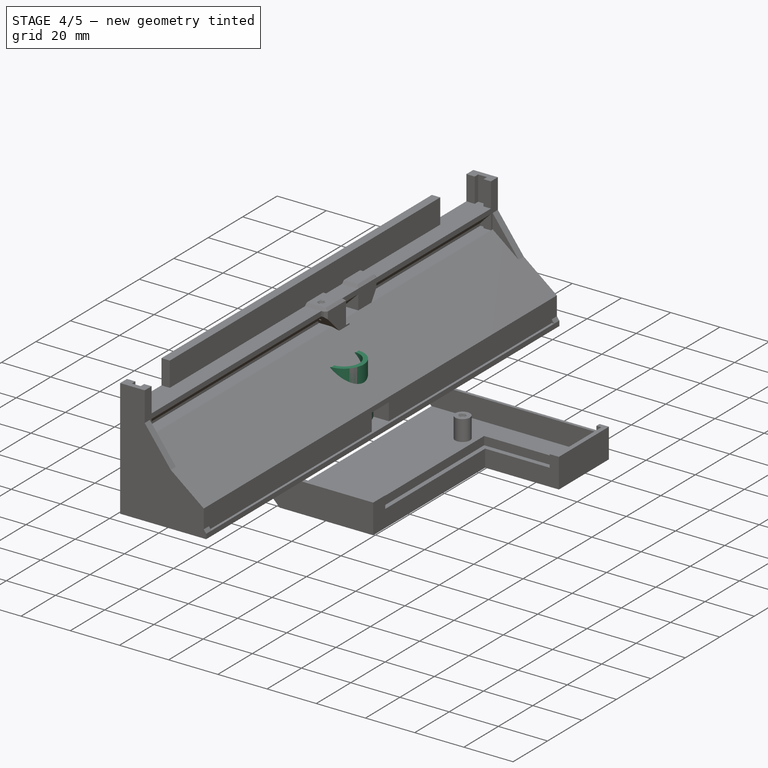
[diagram: stage 4 of 5 — iso view after this stage's code; geometry added in this stage tinted green]
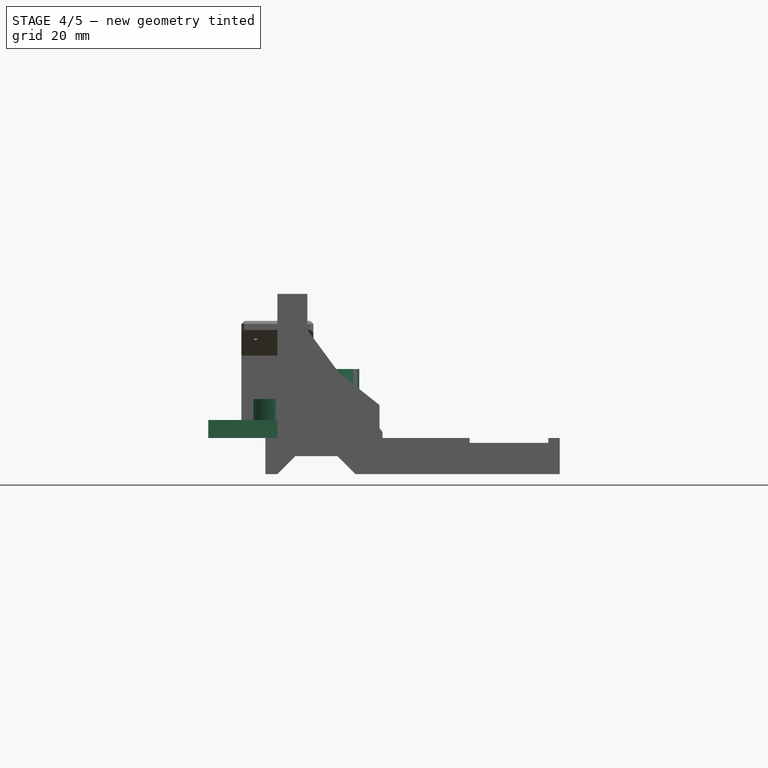
[diagram: stage 4 of 5 — front view after this stage's code; geometry added in this stage tinted green]
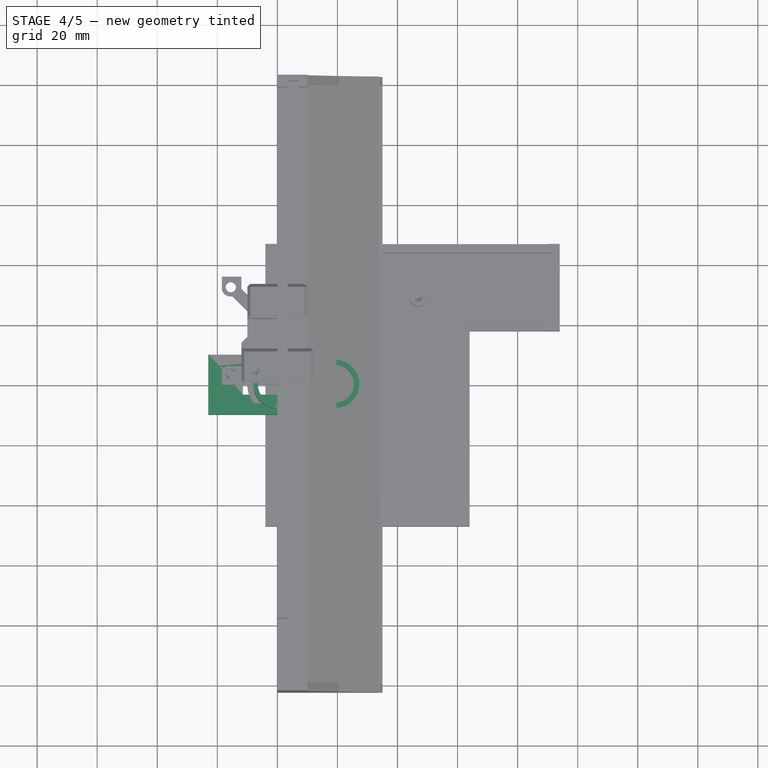
[diagram: stage 4 of 5 — top view after this stage's code; geometry added in this stage tinted green]
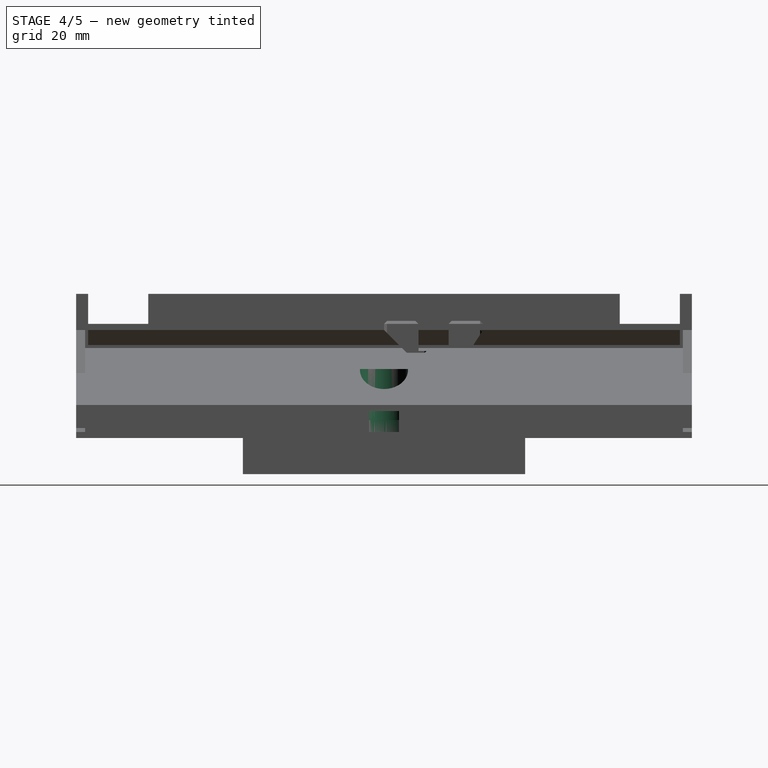
[diagram: stage 4 of 5 — right view after this stage's code; geometry added in this stage tinted green]
FEATURE [PartDesign::Body] Body005  label="OledBraceWide"
  AllowCompound = false
  Group = -> [Sketch014,Pad004]
  Origin = -> Origin005
  Placement = pos=(-50,125,0) rot=(0,0,1;0rad)
  Tip = -> Pad004
FEATURE [Sketcher::SketchObject] Sketch016  label="Outer"
  ArcFitTolerance = 0
  AttachmentSupport = -> [XY_Plane006]
  FullyConstrained = true
  MakeInternals = false
  MapMode = 5
  sketch-geometry (13):
    g0: LineSegment [constr] StartX=-23 StartY=10 StartZ=0 EndX=-23 EndY=-10 EndZ=0
    g1: LineSegment [constr] StartX=-23 StartY=-10 StartZ=0 EndX=23 EndY=-10 EndZ=0
    g2: LineSegment [constr] StartX=23 StartY=-10 StartZ=0 EndX=23 EndY=10 EndZ=0
    g3: LineSegment [constr] StartX=23 StartY=10 StartZ=0 EndX=-23 EndY=10 EndZ=0
    g4: LineSegment [constr] StartX=-23 StartY=10 StartZ=0 EndX=19 EndY=10 EndZ=0
    g5: LineSegment StartX=-23 StartY=10 StartZ=0 EndX=-23 EndY=-10 EndZ=0
    g6: LineSegment [constr] StartX=-23 StartY=-10 StartZ=0 EndX=19 EndY=-10 EndZ=0
    g7: LineSegment [constr] StartX=19 StartY=10 StartZ=0 EndX=19 EndY=-10 EndZ=0
    g8: LineSegment StartX=-23 StartY=10 StartZ=0 EndX=19 EndY=10 EndZ=0
    g9: LineSegment StartX=-23 StartY=-10 StartZ=0 EndX=19 EndY=-10 EndZ=0
    g10: LineSegment [constr] StartX=19 StartY=10 StartZ=0 EndX=19 EndY=-10 EndZ=0
    g11: LineSegment [constr] StartX=19 StartY=-3.353e-13 StartZ=0 EndX=29 EndY=0 EndZ=0
    g12: ArcOfCircle CenterX=19 CenterY=-3.343e-13 CenterZ=0 NormalX=0 NormalY=0 NormalZ=1 AngleXU=0 Radius=10 StartAngle=4.71239 EndAngle=7.85398
  constraints (35):
    c: Coincident(g0,g1)
    c: Coincident(g1,g2)
    c: Coincident(g2,g3)
    c: Coincident(g3,g0)
    c: Vertical(g0)
    c: Vertical(g2)
    c: Horizontal(g1)
    c: Horizontal(g3)
    c: DistanceX(g3,g3) = 46
    c: DistanceY(g2,g2) = 20
    c: Symmetric(g2,g0,g-1)
    c: Distance(g4) = 42
    c: Coincident(g4,g0)
    c: PointOnObject(g4,g3)
    c: Coincident(g5,g0)
    c: Coincident(g5,g0)
    c: Distance(g6) = 42
    c: Coincident(g6,g0)
    c: Horizontal(g6)
    c: Coincident(g7,g4)
    c: Coincident(g7,g6)
    c: Distance(g8) = 42
    c: Coincident(g8,g0)
    c: Horizontal(g8)
    c: Coincident(g9,g0)
    c: PointOnObject(g9,g7)
    c: Horizontal(g9)
    c: Coincident(g10,g8)
    c: Coincident(g10,g9)
    c: Distance(g11) = 10
    c: Symmetric(g7,g7,g11)
    c: PointOnObject(g11,g-1)
    c: Coincident(g12,g4)
    c: Coincident(g12,g6)
    c: PointOnObject(g11,g12)
FEATURE [PartDesign::Pad] Pad005  label="Pad-Outer"
  Direction = (0,0,1)
  Length = 6
  Length2 = 10
  Profile = -> Sketch016
  ReferenceAxis = -> Sketch016 [N_Axis]
  Refine = true
  Suppressed = false
  Type = 0
FEATURE [Sketcher::SketchObject] Sketch015  label="PCB"
  ArcFitTolerance = 0
  AttachmentSupport = -> [Pad005]
  FullyConstrained = true
  MakeInternals = false
  MapMode = 5
  Placement = pos=(0,0,6) rot=(0,0,1;0rad)
  sketch-geometry (4):
    g0: LineSegment StartX=-19.25 StartY=6.25 StartZ=0 EndX=-19.25 EndY=-6.25 EndZ=0
    g1: LineSegment StartX=-19.25 StartY=-6.25 StartZ=0 EndX=19.25 EndY=-6.25 EndZ=0
    g2: LineSegment StartX=19.25 StartY=-6.25 StartZ=0 EndX=19.25 EndY=6.25 EndZ=0
    g3: LineSegment StartX=19.25 StartY=6.25 StartZ=0 EndX=-19.25 EndY=6.25 EndZ=0
  constraints (11):
    c: Coincident(g0,g1)
    c: Coincident(g1,g2)
    c: Coincident(g2,g3)
    c: Coincident(g3,g0)
    c: Vertical(g0)
    c: Vertical(g2)
    c: Horizontal(g1)
    c: Horizontal(g3)
    c: Distance(g0,g2) = 38.5
    c: Distance(g1,g3) = 12.5
    c: Symmetric(g2,g0,g-1)
FEATURE [PartDesign::Pocket] Pocket003  label="Pocket-PCB"
  BaseFeature = -> Pad005
  Direction = (0,0,-1)
  Length = 5
  Length2 = 5
  Profile = -> Sketch015
  ReferenceAxis = -> Sketch015 [N_Axis]
  Refine = true
  Suppressed = false
  Type = 0
FEATURE [Sketcher::SketchObject] Sketch017  label="Display"
  ArcFitTolerance = 0
  AttachmentSupport = -> [Pocket003]
  FullyConstrained = true
  MakeInternals = false
  MapMode = 5
  Placement = pos=(0,0,1) rot=(0,0,1;0rad)
  sketch-geometry (4):
    g0: LineSegment StartX=-11.5 StartY=3.75 StartZ=0 EndX=-11.5 EndY=-3.25 EndZ=0
    g1: LineSegment StartX=-11.5 StartY=-3.25 StartZ=0 EndX=12 EndY=-3.25 EndZ=0
    g2: LineSegment StartX=12 StartY=-3.25 StartZ=0 EndX=12 EndY=3.75 EndZ=0
    g3: LineSegment StartX=12 StartY=3.75 StartZ=0 EndX=-11.5 EndY=3.75 EndZ=0
  constraints (12):
    c: Coincident(g0,g1)
    c: Coincident(g1,g2)
    c: Coincident(g2,g3)
    c: Coincident(g3,g0)
    c: Vertical(g0)
    c: Vertical(g2)
    c: Horizontal(g1)
    c: Horizontal(g3)
    c: Distance(g0,g2) = 23.5
    c: Distance(g1,g3) = 7
    c: DistanceX(g-1,g2) = 12
    c: DistanceY(g-1,g2) = 3.75
FEATURE [PartDesign::Pocket] Pocket010  label="Pocket-Display"
  BaseFeature = -> Pocket003
  Direction = (0,0,-1)
  Length = 1
  Length2 = 5
  Profile = -> Sketch017
  ReferenceAxis = -> Sketch017 [N_Axis]
  Refine = true
  Suppressed = false
  Type = 0
FEATURE [Sketcher::SketchObject] Sketch018  label="Grommet"
  ArcFitTolerance = 0
  AttachmentSupport = -> [Pocket010]
  FullyConstrained = true
  MakeInternals = false
  MapMode = 5
  Placement = pos=(0,0,6) rot=(0,0,1;0rad)
  sketch-geometry (7):
    g0: LineSegment [constr] StartX=-19.25 StartY=8 StartZ=0 EndX=-19.25 EndY=-8 EndZ=0
    g1: LineSegment [constr] StartX=-19.25 StartY=-8 StartZ=0 EndX=19.25 EndY=-8 EndZ=0
    g2: LineSegment [constr] StartX=19.25 StartY=-8 StartZ=0 EndX=19.25 EndY=8 EndZ=0
    g3: LineSegment [constr] StartX=19.25 StartY=8 StartZ=0 EndX=-19.25 EndY=8 EndZ=0
    g4: LineSegment [constr] StartX=19.25 StartY=-1e-15 StartZ=0 EndX=27.25 EndY=-1e-15 EndZ=0
    g5: LineSegment StartX=19.25 StartY=8 StartZ=0 EndX=19.25 EndY=-8 EndZ=0
    g6: ArcOfCircle CenterX=19.25 CenterY=-8e-16 CenterZ=0 NormalX=0 NormalY=0 NormalZ=1 AngleXU=0 Radius=8 StartAngle=4.71239 EndAngle=7.85398
  constraints (19):
    c: Coincident(g0,g1)
    c: Coincident(g1,g2)
    c: Coincident(g2,g3)
    c: Coincident(g3,g0)
    c: Vertical(g0)
    c: Vertical(g2)
    c: Horizontal(g1)
    c: Horizontal(g3)
    c: Distance(g0,g2) = 38.5
    c: Distance(g1,g3) = 16
    c: Symmetric(g2,g0,g-1)
    c: Distance(g4) = 8
    c: Symmetric(g2,g2,g4)
    c: Horizontal(g4)
    c: Coincident(g5,g2)
    c: Coincident(g5,g1)
    c: Coincident(g6,g2)
    c: Coincident(g6,g1)
    c: PointOnObject(g4,g6)
FEATURE [PartDesign::Pad] Pad006  label="Pad-Grommet"
  BaseFeature = -> Pocket010
  Direction = (0,0,1)
  Length = 17
  Length2 = 10
  Profile = -> Sketch018
  ReferenceAxis = -> Sketch018 [N_Axis]
  Refine = true
  Suppressed = false
  Type = 0
FEATURE [Sketcher::SketchObject] Sketch019  label="GrommetHole"
  ArcFitTolerance = 0
  AttachmentSupport = -> [Pad006]
  FullyConstrained = true
  MakeInternals = false
  MapMode = 5
  Placement = pos=(0,0,23) rot=(0,0,1;0rad)
  sketch-geometry (6):
    g0: LineSegment [constr] StartX=-19.25 StartY=6.25 StartZ=0 EndX=-19.25 EndY=-6.25 EndZ=0
    g1: LineSegment [constr] StartX=-19.25 StartY=-6.25 StartZ=0 EndX=19.25 EndY=-6.25 EndZ=0
    g2: LineSegment StartX=19.25 StartY=-6.25 StartZ=0 EndX=19.25 EndY=6.25 EndZ=0
    g3: LineSegment [constr] StartX=19.25 StartY=6.25 StartZ=0 EndX=-19.25 EndY=6.25 EndZ=0
    g4: LineSegment [constr] StartX=19.25 StartY=0 StartZ=0 EndX=25.5 EndY=0 EndZ=0
    g5: ArcOfCircle CenterX=19.25 CenterY=-2.092e-13 CenterZ=0 NormalX=0 NormalY=0 NormalZ=1 AngleXU=0 Radius=6.25 StartAngle=4.71239 EndAngle=7.85398
  constraints (17):
    c: Coincident(g0,g1)
    c: Coincident(g1,g2)
    c: Coincident(g2,g3)
    c: Coincident(g3,g0)
    c: Vertical(g0)
    c: Vertical(g2)
    c: Horizontal(g1)
    c: Horizontal(g3)
    c: Distance(g0,g2) = 38.5
    c: Distance(g1,g3) = 12.5
    c: Symmetric(g2,g0,g-1)
    c: Distance(g4) = 6.25
    c: Symmetric(g2,g2,g4)
    c: PointOnObject(g4,g-1)
    c: Coincident(g5,g2)
    c: Coincident(g5,g1)
    c: PointOnObject(g4,g5)
FEATURE [PartDesign::Pocket] Pocket011  label="Pocket-Grommet"
  BaseFeature = -> Pad006
  Direction = (0,0,-1)
  Length = 17
  Length2 = 5
  Profile = -> Sketch019
  ReferenceAxis = -> Sketch019 [N_Axis]
  Refine = true
  Suppressed = false
  Type = 0
FEATURE [Sketcher::SketchObject] Sketch022  label="RingHoleSketch"
  ArcFitTolerance = 0
  AttachmentSupport = -> [Pocket012]
  FullyConstrained = true
  MakeInternals = false
  MapMode = 5
  Placement = pos=(0,0,3) rot=(0,0,1;0rad)
  sketch-geometry (1):
    g0: Circle CenterX=0 CenterY=0 CenterZ=0 NormalX=0 NormalY=0 NormalZ=1 AngleXU=0 Radius=8
  constraints (2):
    c: Coincident(g0,g-1)
    c: Diameter(g0) = 16
FEATURE [PartDesign::Pocket] Pocket013  label="RingHolePocket"
  BaseFeature = -> Pocket012
  Direction = (0,0,-1)
  Length = 5
  Length2 = 5
  Profile = -> Sketch022
  ReferenceAxis = -> Sketch022 [N_Axis]
  Refine = true
  Suppressed = false
  Type = 0
FEATURE [Sketcher::SketchObject] Sketch023  label="RingExtensionSketch"
  ArcFitTolerance = 0
  AttachmentSupport = -> [XY_Plane007]
  FullyConstrained = true
  MakeInternals = false
  MapMode = 5
  sketch-geometry (8):
    g0: LineSegment [constr] StartX=-2.3e-15 StartY=0 StartZ=0 EndX=-6.5 EndY=0 EndZ=0
    g1: LineSegment StartX=-2.3e-15 StartY=6.5 StartZ=0 EndX=-2.3e-15 EndY=8 EndZ=0
    g2: LineSegment StartX=-2.3e-15 StartY=-6.5 StartZ=0 EndX=-2.3e-15 EndY=-8 EndZ=0
    g3: LineSegment [constr] StartX=-6.5 StartY=0 StartZ=0 EndX=-8 EndY=0 EndZ=0
    g4: LineSegment [constr] StartX=-2.3e-15 StartY=0 StartZ=0 EndX=-2.3e-15 EndY=-6.5 EndZ=0
    g5: LineSegment [constr] StartX=-2.3e-15 StartY=6.5 StartZ=0 EndX=-2.3e-15 EndY=0 EndZ=0
    g6: ArcOfCircle CenterX=3e-16 CenterY=1e-16 CenterZ=0 NormalX=0 NormalY=0 NormalZ=1 AngleXU=0 Radius=6.5 StartAngle=1.5708 EndAngle=4.71239
    g7: ArcOfCircle CenterX=-2.14e-13 CenterY=-2.129e-13 CenterZ=0 NormalX=0 NormalY=0 NormalZ=1 AngleXU=0 Radius=8 StartAngle=1.5708 EndAngle=4.71239
  constraints (26):
    c: Horizontal(g0)
    c: Distance(g2) = 1.5
    c: PointOnObject(g2,g-2)
    c: Vertical(g2)
    c: DistanceX(g0,g0) = 6.5
    c: DistanceX(g3,g3) = 1.5
    c: Coincident(g4,g0)
    c: Coincident(g4,g2)
    c: Vertical(g4)
    c: DistanceY(g4,g4) = 6.5
    c: DistanceY(g1,g1) = 1.5
    c: Horizontal(g3)
    c: Vertical(g0,g3)
    c: Horizontal(g4,g-1)
    c: Distance(g5) = 6.5
    c: Coincident(g5,g1)
    c: Coincident(g5,g0)
    c: Vertical(g5)
    c: Vertical(g1,g1)
    c: Horizontal(g0,g3)
    c: Coincident(g6,g2)
    c: Coincident(g6,g1)
    c: PointOnObject(g3,g6)
    c: Coincident(g7,g1)
    c: Coincident(g7,g2)
    c: PointOnObject(g3,g7)
FEATURE [PartDesign::Pad] Pad008  label="RingExtensionPad"
  BaseFeature = -> Pocket013
  Direction = (0,0,1)
  Length = 13
  Length2 = 10
  Profile = -> Sketch023
  ReferenceAxis = -> Sketch023 [N_Axis]
  Refine = true
  Suppressed = false
  Type = 0
FEATURE [Sketcher::SketchObject] Sketch024  label="RingTolerancesSketch"
  ArcFitTolerance = 0
  AttachmentSupport = -> [Pad008]
  FullyConstrained = true
  MakeInternals = false
  MapMode = 5
  Placement = pos=(0,0,13) rot=(0,0,1;0rad)
  sketch-geometry (6):
    g0: LineSegment [constr] StartX=1.8e-15 StartY=8.2 StartZ=0 EndX=1.8e-15 EndY=-8.2 EndZ=0
    g1: LineSegment [constr] StartX=0 StartY=0 StartZ=0 EndX=8.2 EndY=0 EndZ=0
    g2: ArcOfCircle CenterX=-7e-16 CenterY=-6e-16 CenterZ=0 NormalX=0 NormalY=0 NormalZ=1 AngleXU=0 Radius=8.2 StartAngle=4.71239 EndAngle=7.85398
    g3: LineSegment StartX=1.8e-15 StartY=8.2 StartZ=0 EndX=-0.2 EndY=8.2 EndZ=0
    g4: LineSegment StartX=1.8e-15 StartY=-8.2 StartZ=0 EndX=-0.2 EndY=-8.2 EndZ=0
    g5: LineSegment StartX=-0.2 StartY=-8.2 StartZ=0 EndX=-0.2 EndY=8.2 EndZ=0
  constraints (17):
    c: Distance(g0) = 16.4
    c: Vertical(g0)
    c: Symmetric(g0,g0,g-1)
    c: Distance(g1) = 8.2
    c: Coincident(g1,g-1)
    c: PointOnObject(g1,g-1)
    c: Coincident(g2,g0)
    c: Coincident(g2,g0)
    c: PointOnObject(g1,g2)
    c: Distance(g3) = 0.2
    c: Coincident(g3,g0)
    c: Horizontal(g3)
    c: Distance(g4) = 0.2
    c: Coincident(g4,g0)
    c: Horizontal(g4)
    c: Coincident(g5,g4)
    c: Coincident(g5,g3)
FEATURE [PartDesign::Pocket] Pocket014  label="RingTolerancesPocket"
  BaseFeature = -> Pad008
  Direction = (0,0,-1)
  Length = 20
  Length2 = 5
  Profile = -> Sketch024
  ReferenceAxis = -> Sketch024 [N_Axis]
  Refine = true
  Suppressed = false
  Type = 0
FEATURE [Sketcher::SketchObject] Sketch025  label="RingStopperSketch"
  ArcFitTolerance = 1e-06
  AttachmentSupport = -> [XY_Plane007]
  ExternalGeometry = -> [Pad008]
  FullyConstrained = true
  MakeInternals = false
  MapMode = 5
  sketch-geometry (13):
    g0: LineSegment [constr] StartX=-7.07107 StartY=7.07107 StartZ=0 EndX=7.07107 EndY=7.07107 EndZ=0
    g1: LineSegment StartX=-7.07107 StartY=7.07107 StartZ=0 EndX=-7.07107 EndY=15.0711 EndZ=0
    g2: LineSegment StartX=7.07107 StartY=7.07107 StartZ=0 EndX=7.07107 EndY=15.0711 EndZ=0
    g3: LineSegment [constr] StartX=-7.07107 StartY=15.0711 StartZ=0 EndX=-7.07107 EndY=18.0711 EndZ=0
    g4: LineSegment [constr] StartX=7.07107 StartY=15.0711 StartZ=0 EndX=7.07107 EndY=18.0711 EndZ=0
    g5: LineSegment [constr] StartX=-7.07107 StartY=18.0711 StartZ=0 EndX=-9.07107 EndY=18.0711 EndZ=0
    g6: LineSegment StartX=-9.07107 StartY=18.0711 StartZ=0 EndX=-9.07107 EndY=17.0711 EndZ=0
    g7: LineSegment [constr] StartX=7.07107 StartY=18.0711 StartZ=0 EndX=9.07107 EndY=18.0711 EndZ=0
    g8: LineSegment StartX=9.07107 StartY=18.0711 StartZ=0 EndX=9.07107 EndY=17.0711 EndZ=0
    g9: LineSegment StartX=-7.07107 StartY=15.0711 StartZ=0 EndX=-9.07107 EndY=17.0711 EndZ=0
    g10: LineSegment StartX=-9.07107 StartY=18.0711 StartZ=0 EndX=9.07107 EndY=18.0711 EndZ=0
    g11: LineSegment StartX=9.07107 StartY=17.0711 StartZ=0 EndX=7.07107 EndY=15.0711 EndZ=0
    g12: ArcOfCircle CenterX=0 CenterY=0 CenterZ=0 NormalX=0 NormalY=0 NormalZ=1 AngleXU=0 Radius=10 StartAngle=0.785398 EndAngle=2.35619
  constraints (35):
    c: Coincident(g0,g-4)
    c: Coincident(g0,g-3)
    c: Coincident(g1,g0)
    c: Vertical(g1)
    c: DistanceY(g1,g1) = 8
    c: Coincident(g2,g0)
    c: Vertical(g2)
    c: Equal(g2,g1)
    c: Distance(g3) = 3
    c: Coincident(g3,g1)
    c: Vertical(g3)
    c: Coincident(g4,g2)
    c: Vertical(g4)
    c: Equal(g4,g3)
    c: Distance(g5) = 2
    c: Coincident(g5,g3)
    c: Horizontal(g5)
    c: Distance(g6) = 1
    c: Coincident(g6,g5)
    c: Vertical(g6)
    c: Coincident(g7,g4)
    c: Horizontal(g7)
    c: Coincident(g8,g7)
    c: Vertical(g8)
    c: Equal(g8,g6)
    c: Equal(g7,g5)
    c: Coincident(g9,g1)
    c: Coincident(g9,g6)
    c: Coincident(g10,g5)
    c: Coincident(g10,g7)
    c: Coincident(g11,g8)
    c: Coincident(g11,g2)
    c: Coincident(g12,g-1)
    c: Coincident(g12,g0)
    c: Horizontal(g12,g0)
FEATURE [PartDesign::Pad] Pad009  label="RingStopperPad"
  BaseFeature = -> Pocket014
  Direction = (0,0,1)
  Length = 3
  Length2 = 10
  Profile = -> Sketch025
  ReferenceAxis = -> Sketch025 [N_Axis]
  Refine = true
  Suppressed = false
  Type = 0
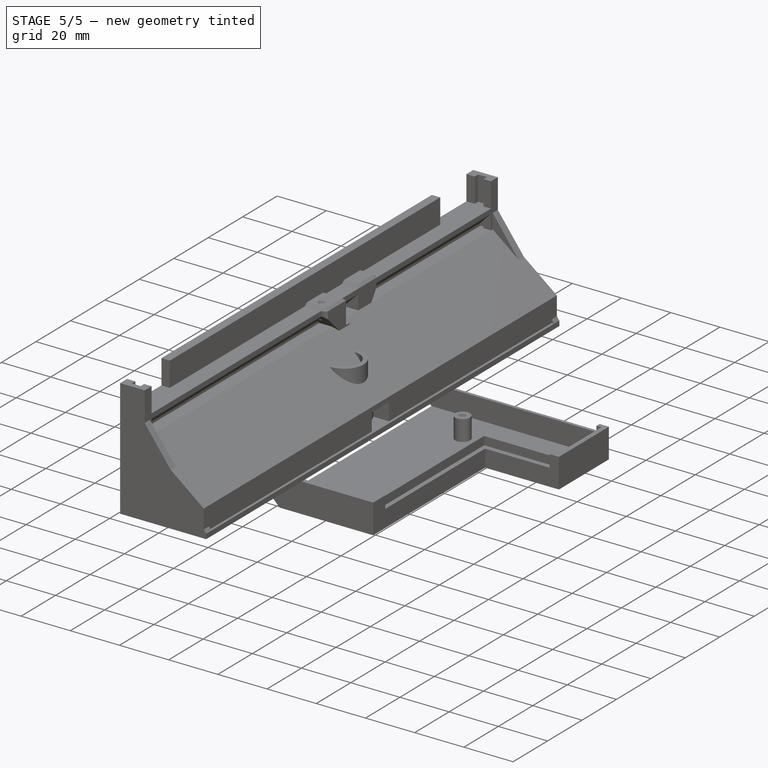
[diagram: stage 5 of 5 — iso view after this stage's code; geometry added in this stage tinted green]
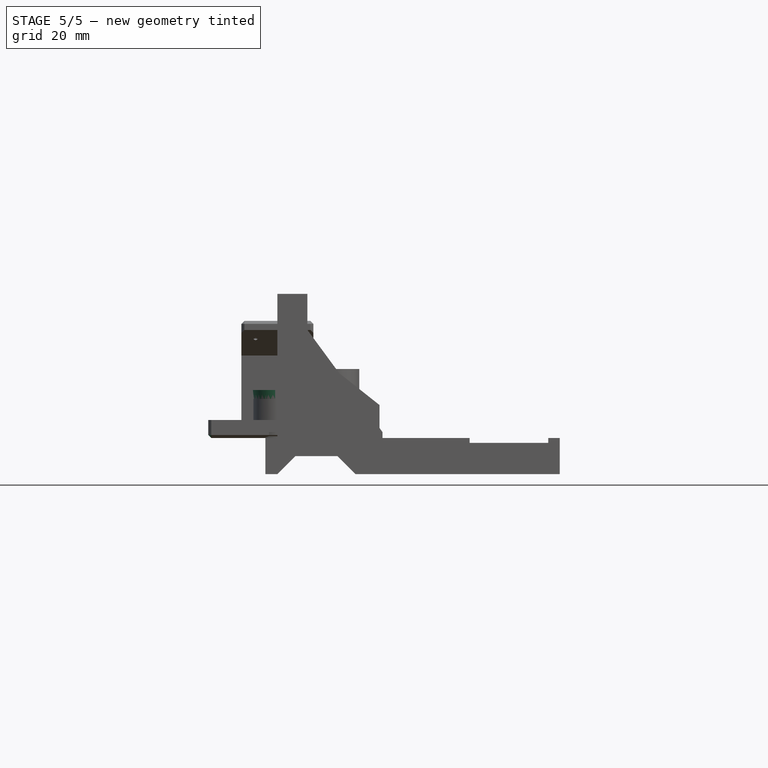
[diagram: stage 5 of 5 — front view after this stage's code; geometry added in this stage tinted green]
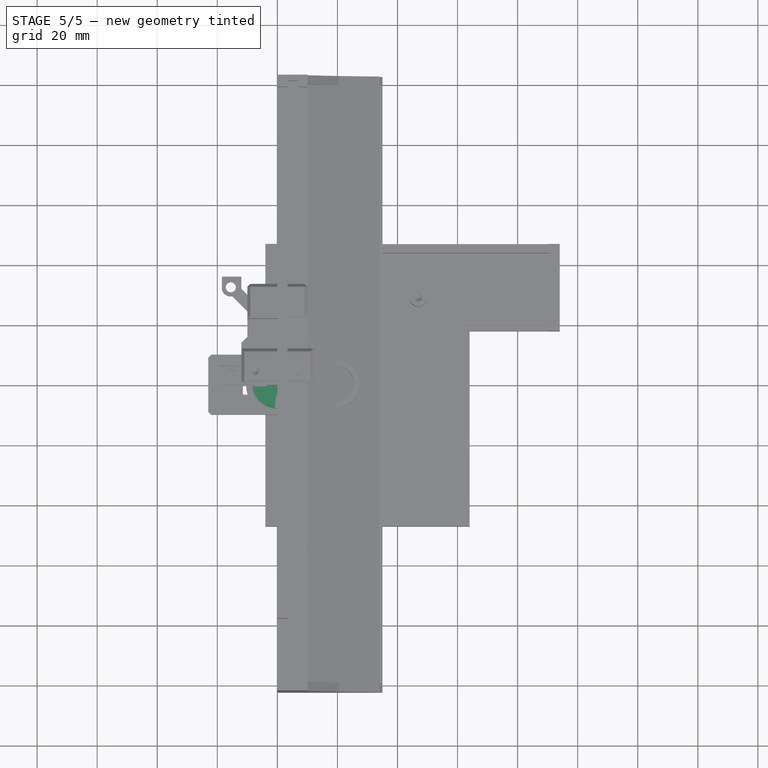
[diagram: stage 5 of 5 — top view after this stage's code; geometry added in this stage tinted green]
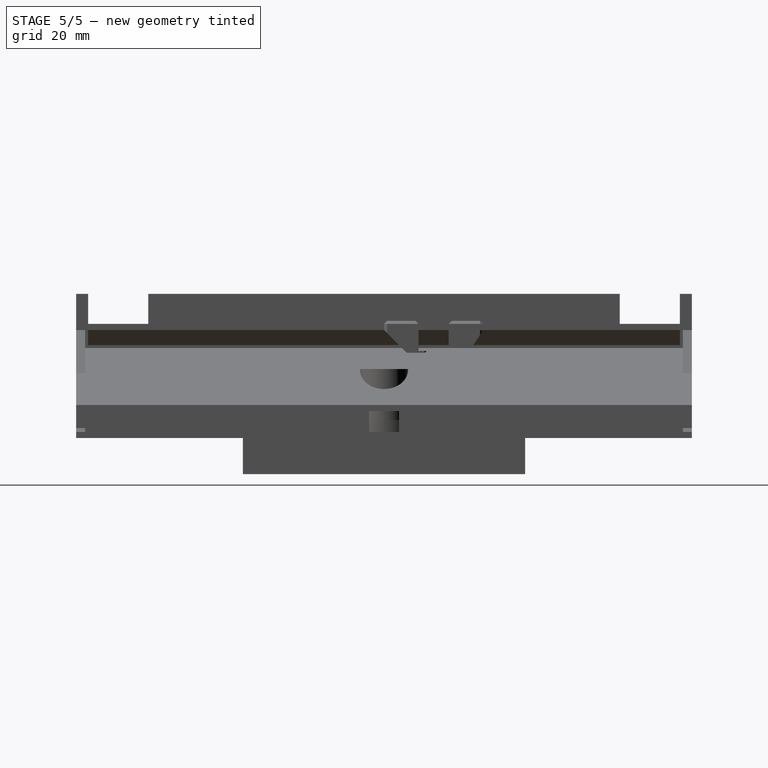
[diagram: stage 5 of 5 — right view after this stage's code; geometry added in this stage tinted green]
FEATURE [Sketcher::SketchObject] Sketch009  label="AcGrommetBaseSketch"
  ArcFitTolerance = 0
  AttachmentSupport = -> [XZ_Plane002]
  FullyConstrained = true
  MakeInternals = false
  MapMode = 5
  Placement = pos=(0,0,0) rot=(1,0,0;1.5708rad)
  sketch-geometry (10):
    g0: LineSegment StartX=3.4 StartY=0 StartZ=0 EndX=3.4 EndY=16 EndZ=0
    g1: LineSegment StartX=3.4 StartY=16 StartZ=0 EndX=8.2 EndY=16 EndZ=0
    g2: LineSegment StartX=3.4 StartY=0 StartZ=0 EndX=9.4 EndY=0 EndZ=0
    g3: LineSegment StartX=10.4 StartY=1 StartZ=0 EndX=10.4 EndY=2 EndZ=0
    g4: LineSegment StartX=9.4 StartY=0 StartZ=0 EndX=10.4 EndY=1 EndZ=0
    g5: LineSegment StartX=10.4 StartY=2 StartZ=0 EndX=8.4 EndY=2 EndZ=0
    g6: LineSegment StartX=8.4 StartY=2 StartZ=0 EndX=8.4 EndY=3 EndZ=0
    g7: LineSegment StartX=7 StartY=4 StartZ=0 EndX=7 EndY=5 EndZ=0
    g8: LineSegment StartX=8.4 StartY=3 StartZ=0 EndX=7 EndY=4 EndZ=0
    g9: LineSegment StartX=7 StartY=5 StartZ=0 EndX=8.2 EndY=16 EndZ=0
  constraints (30):
    c: Distance(g0) = 16  'Height'
    c: DistanceX(g-1,g0) = 3.4  'HoleRadius'
    c: Vertical(g0)
    c: DistanceY(g0) = 0
    c: Coincident(g1,g0)
    c: Horizontal(g1)
    c: Coincident(g2,g0)
    c: PointOnObject(g2,g-1)
    c: DistanceX(g1,g1) = 4.8
    c: DistanceX(g2,g2) = 6
    c: Distance(g3) = 1
    c: DistanceY(g2,g3) = 1
    c: Coincident(g4,g2)
    c: Coincident(g4,g3)
    c: Vertical(g3,g3)
    c: DistanceX(g0,g3) = 7
    c: Distance(g5) = 2
    c: Coincident(g5,g3)
    c: Horizontal(g5)
    c: Distance(g6) = 1
    c: Coincident(g6,g5)
    c: Vertical(g6)
    c: Vertical(g7)
    c: DistanceY(g6,g7) = 1
    c: DistanceX(g7) = 7
    c: DistanceY(g7,g7) = 1
    c: Coincident(g8,g6)
    c: Coincident(g8,g7)
    c: Coincident(g9,g7)
    c: Coincident(g9,g1)
FEATURE [PartDesign::Revolution] Revolution  label="AcGrommetBaseRevolution"
  Angle = 360
  Angle2 = 60
  Axis = (0,2e-16,1)
  Base = (0,0,0)
  Placement = pos=(0,0,0) rot=(1,0,0;1.5708rad)
  Profile = -> Sketch009
  ReferenceAxis = -> Sketch009 [V_Axis]
  Refine = true
  Suppressed = false
  Type = 0
FEATURE [Sketcher::SketchObject] Sketch005  label="AcGrommetBaseCutoutSketch"
  ArcFitTolerance = 0
  AttachmentSupport = -> [Revolution]
  FullyConstrained = true
  MakeInternals = false
  MapMode = 5
  Placement = pos=(0,7e-15,16) rot=(0,0,1;3.14159rad)
  sketch-geometry (12):
    g0: LineSegment StartX=-9 StartY=0.75 StartZ=0 EndX=-9 EndY=-0.75 EndZ=0
    g1: LineSegment StartX=9 StartY=0.75 StartZ=0 EndX=9 EndY=-0.75 EndZ=0
    g2: LineSegment StartX=-0.75 StartY=9 StartZ=0 EndX=0.75 EndY=9 EndZ=0
    g3: LineSegment StartX=-0.75 StartY=-9 StartZ=0 EndX=0.75 EndY=-9 EndZ=0
    g4: LineSegment StartX=0.75 StartY=-9 StartZ=0 EndX=0.75 EndY=-0.75 EndZ=0
    g5: LineSegment StartX=0.75 StartY=-0.75 StartZ=0 EndX=9 EndY=-0.75 EndZ=0
    g6: LineSegment StartX=9 StartY=0.75 StartZ=0 EndX=0.75 EndY=0.75 EndZ=0
    g7: LineSegment StartX=0.75 StartY=0.75 StartZ=0 EndX=0.75 EndY=9 EndZ=0
    g8: LineSegment StartX=-0.75 StartY=9 StartZ=0 EndX=-0.75 EndY=0.75 EndZ=0
    g9: LineSegment StartX=-0.75 StartY=0.75 StartZ=0 EndX=-9 EndY=0.75 EndZ=0
    g10: LineSegment StartX=-9 StartY=-0.75 StartZ=0 EndX=-0.75 EndY=-0.75 EndZ=0
    g11: LineSegment StartX=-0.75 StartY=-0.75 StartZ=0 EndX=-0.75 EndY=-9 EndZ=0
  constraints (36):
    c: Vertical(g0)
    c: DistanceY(g0,g0) = 1.5
    c: DistanceX(g0,g-1) = 9
    c: DistanceY(g0) = -0.75
    c: Vertical(g1)
    c: DistanceX(g0,g1) = 18
    c: Horizontal(g0,g1)
    c: DistanceY(g1,g1) = 1.5
    c: Horizontal(g2)
    c: DistanceX(g2,g2) = 1.5
    c: DistanceY(g-1,g2) = 9
    c: DistanceX(g2,g-1) = 0.75
    c: Distance(g3) = 1.5
    c: Horizontal(g3)
    c: DistanceX(g3) = -0.75
    c: DistanceY(g3,g-1) = 9
    c: Distance(g4) = 8.25
    c: Coincident(g4,g3)
    c: Vertical(g4)
    c: Coincident(g5,g4)
    c: Coincident(g5,g1)
    c: Distance(g6) = 8.25
    c: Coincident(g6,g1)
    c: Horizontal(g6)
    c: Coincident(g7,g6)
    c: Coincident(g7,g2)
    c: Distance(g8) = 8.25
    c: Coincident(g8,g2)
    c: Vertical(g8)
    c: Coincident(g9,g8)
    c: Coincident(g9,g0)
    c: Distance(g10) = 8.25
    c: Coincident(g10,g0)
    c: Horizontal(g10)
    c: Coincident(g11,g10)
    c: Coincident(g11,g3)
FEATURE [PartDesign::Pocket] Pocket007  label="AcGrommetBasePocket"
  BaseFeature = -> Revolution
  Direction = (0,0,-1)
  Length = 12
  Length2 = 5
  Placement = pos=(0,0,0) rot=(1,0,0;1.5708rad)
  Profile = -> Sketch005
  ReferenceAxis = -> Sketch005 [N_Axis]
  Refine = true
  Suppressed = false
  Type = 0
FEATURE [PartDesign::Body] Body002  label="AcGrommetBase"
  AllowCompound = false
  Group = -> [Sketch009,Revolution,Sketch005,Pocket007]
  Origin = -> Origin002
  Placement = pos=(-100,-50,0) rot=(0,0,1;0rad)
  Tip = -> Pocket007
FEATURE [Sketcher::SketchObject] Sketch010
  ArcFitTolerance = 0
  AttachmentSupport = -> [XY_Plane003]
  FullyConstrained = true
  MakeInternals = false
  MapMode = 5
  sketch-geometry (1):
    g0: Circle CenterX=0 CenterY=0 CenterZ=0 NormalX=0 NormalY=0 NormalZ=1 AngleXU=0 Radius=10
  constraints (3):
    c: Horizontal(g0,g-1)  'CenterH'
    c: Vertical(g-1,g0)  'CenterV'
    c: Diameter(g0) = 20
FEATURE [PartDesign::Pad] Pad002
  Direction = (0,0,1)
  Length = 3
  Length2 = 10
  Profile = -> Sketch010
  ReferenceAxis = -> Sketch010 [N_Axis]
  Refine = true
  Suppressed = false
  Type = 0
FEATURE [Sketcher::SketchObject] Sketch011
  ArcFitTolerance = 0
  FullyConstrained = true
  MakeInternals = false
  MapMode = 5
  Placement = pos=(0,0,3) rot=(0,0,1;0rad)
  sketch-geometry (1):
    g0: Circle CenterX=0 CenterY=0 CenterZ=0 NormalX=0 NormalY=0 NormalZ=1 AngleXU=0 Radius=8
  constraints (2):
    c: Diameter(g0) = 16  'HoleDiam'
    c: Coincident(g0,g-1)
FEATURE [PartDesign::Pocket] Pocket008
  BaseFeature = -> Pad002
  Direction = (0,0,-1)
  Length = 5
  Length2 = 5
  Profile = -> Sketch011
  ReferenceAxis = -> Sketch011 [N_Axis]
  Refine = true
  Suppressed = false
  Type = 0
FEATURE [Sketcher::SketchObject] Sketch012
  ArcFitTolerance = 0
  AttachmentSupport = -> [Pocket008]
  FullyConstrained = true
  MakeInternals = false
  MapMode = 5
  Placement = pos=(0,0,3) rot=(0,0,1;0rad)
  sketch-geometry (3):
    g0: ArcOfCircle CenterX=0 CenterY=0 CenterZ=0 NormalX=0 NormalY=0 NormalZ=1 AngleXU=0 Radius=10 StartAngle=2.35619 EndAngle=3.92699
    g1: LineSegment StartX=-7.07107 StartY=7.07107 StartZ=0 EndX=0 EndY=0 EndZ=0
    g2: LineSegment StartX=0 StartY=0 StartZ=0 EndX=-7.07107 EndY=-7.07107 EndZ=0
  constraints (8):
    c: Angle(g0) = 1.5708
    c: Coincident(g0,g-1)
    c: Coincident(g1,g0)
    c: Coincident(g1,g0)
    c: Coincident(g2,g0)
    c: Coincident(g2,g0)
    c: Distance(g1,g1) = 10  'Line1'
    c: Angle(g2,g-2) = 0.785398
FEATURE [PartDesign::Pocket] Pocket009
  BaseFeature = -> Pocket008
  Direction = (0,0,-1)
  Length = 1
  Length2 = 5
  Profile = -> Sketch012
  ReferenceAxis = -> Sketch012 [N_Axis]
  Refine = true
  Suppressed = false
  Type = 0
FEATURE [PartDesign::Body] Body003  label="AcGrommetRing"
  AllowCompound = false
  Group = -> [Sketch010,Pad002,Sketch011,Pocket008,Sketch012,Pocket009]
  Origin = -> Origin003
  Placement = pos=(-100,-75,0) rot=(0,0,1;0rad)
  Tip = -> Pocket009
FEATURE [Sketcher::SketchObject] Sketch013
  ArcFitTolerance = 0
  AttachmentSupport = -> [XY_Plane004]
  FullyConstrained = true
  MakeInternals = false
  MapMode = 5
  sketch-geometry (4):
    g0: LineSegment StartX=-1.5 StartY=6.25 StartZ=0 EndX=-1.5 EndY=-6.25 EndZ=0
    g1: LineSegment StartX=-1.5 StartY=-6.25 StartZ=0 EndX=1.5 EndY=-6.25 EndZ=0
    g2: LineSegment StartX=1.5 StartY=-6.25 StartZ=0 EndX=1.5 EndY=6.25 EndZ=0
    g3: LineSegment StartX=1.5 StartY=6.25 StartZ=0 EndX=-1.5 EndY=6.25 EndZ=0
  constraints (11):
    c: Coincident(g0,g1)
    c: Coincident(g1,g2)
    c: Coincident(g2,g3)
    c: Coincident(g3,g0)
    c: Vertical(g0)
    c: Vertical(g2)
    c: Horizontal(g1)
    c: Horizontal(g3)
    c: DistanceY(g0,g0) = 12.5
    c: DistanceX(g1,g1) = 3
    c: Symmetric(g0,g1,g-1)
FEATURE [PartDesign::Pad] Pad003
  Direction = (0,0,1)
  Length = 1.6
  Length2 = 10
  Profile = -> Sketch013
  ReferenceAxis = -> Sketch013 [N_Axis]
  Refine = true
  Suppressed = false
  Type = 0
FEATURE [PartDesign::Body] Body004  label="OledBraceNarrow"
  AllowCompound = false
  Group = -> [Sketch013,Pad003]
  Origin = -> Origin004
  Placement = pos=(-50,150,0) rot=(0,0,1;0rad)
  Tip = -> Pad003
FEATURE [Sketcher::SketchObject] Sketch014
  ArcFitTolerance = 0
  FullyConstrained = true
  MakeInternals = false
  MapMode = 5
  sketch-geometry (4):
    g0: LineSegment StartX=-4.5 StartY=6.25 StartZ=0 EndX=-4.5 EndY=-6.25 EndZ=0
    g1: LineSegment StartX=-4.5 StartY=-6.25 StartZ=0 EndX=4.5 EndY=-6.25 EndZ=0
    g2: LineSegment StartX=4.5 StartY=-6.25 StartZ=0 EndX=4.5 EndY=6.25 EndZ=0
    g3: LineSegment StartX=4.5 StartY=6.25 StartZ=0 EndX=-4.5 EndY=6.25 EndZ=0
  constraints (11):
    c: Coincident(g0,g1)
    c: Coincident(g1,g2)
    c: Coincident(g2,g3)
    c: Coincident(g3,g0)
    c: Vertical(g0)
    c: Vertical(g2)
    c: Horizontal(g1)
    c: Horizontal(g3)
    c: DistanceY(g0,g0) = 12.5
    c: DistanceX(g1,g1) = 9
    c: Symmetric(g0,g1,g-1)
FEATURE [PartDesign::Pad] Pad004
  Direction = (0,0,1)
  Length = 1.6
  Length2 = 10
  Profile = -> Sketch014
  ReferenceAxis = -> Sketch014 [N_Axis]
  Refine = true
  Suppressed = false
  Type = 0
FEATURE [PartDesign::Chamfer] Chamfer002
  Angle = 45
  Base = -> Pocket011 [Edge9]
  BaseFeature = -> Pocket011
  ChamferType = 0
  FlipDirection = false
  Refine = true
  Size = 1
  Size2 = 1
  SupportTransform = false
  Suppressed = false
  UseAllEdges = false
FEATURE [PartDesign::Chamfer] Chamfer003
  Angle = 45
  Base = -> Chamfer002 [Edge4]
  BaseFeature = -> Chamfer002
  ChamferType = 0
  FlipDirection = false
  Refine = true
  Size = 1
  Size2 = 1
  SupportTransform = false
  Suppressed = false
  UseAllEdges = false
FEATURE [PartDesign::Chamfer] Chamfer004
  Angle = 45
  Base = -> Chamfer003 [Edge2,Edge3]
  BaseFeature = -> Chamfer003
  ChamferType = 0
  FlipDirection = false
  Refine = true
  Size = 1
  Size2 = 1
  SupportTransform = false
  Suppressed = false
  UseAllEdges = false
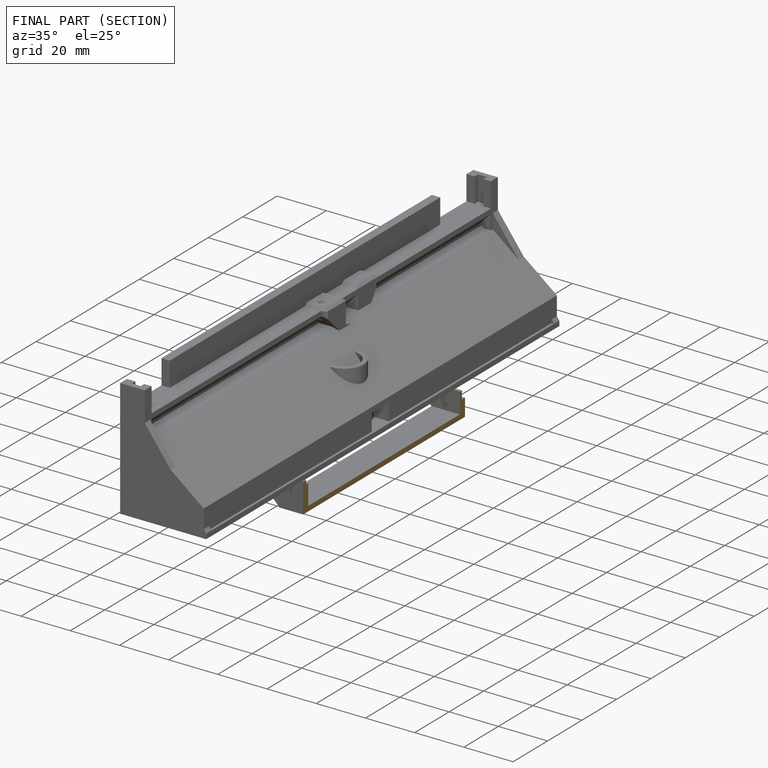
[diagram: finished part — half-section view (interior)]
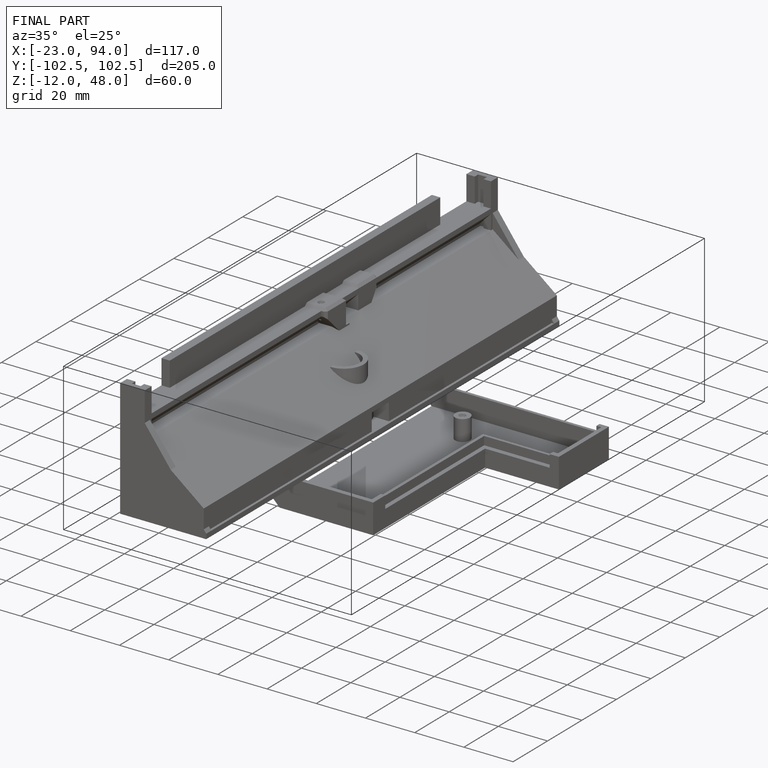
[diagram: finished part — iso view with bounding-box wireframe]
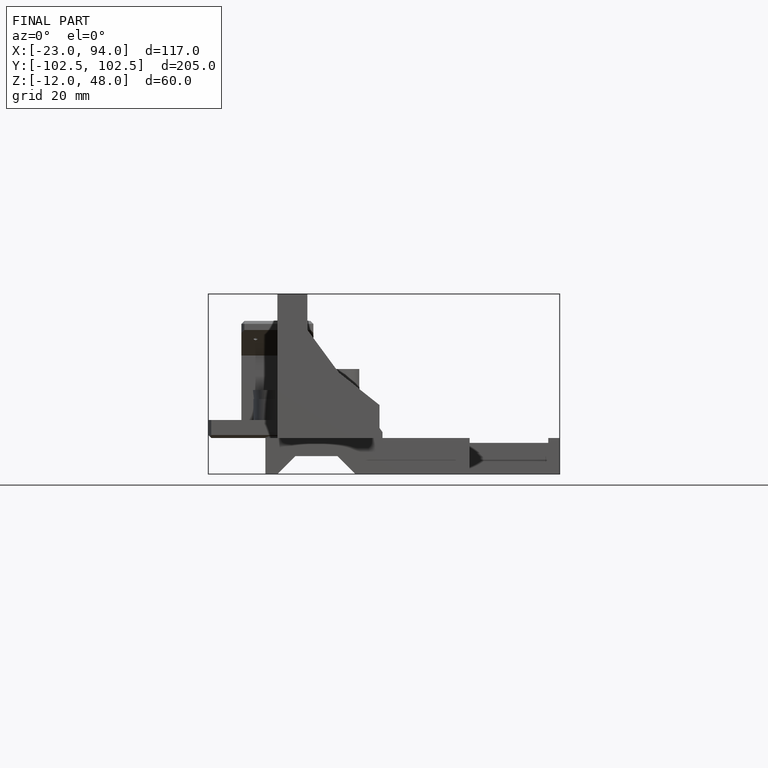
[diagram: finished part — front view with bounding-box wireframe]
